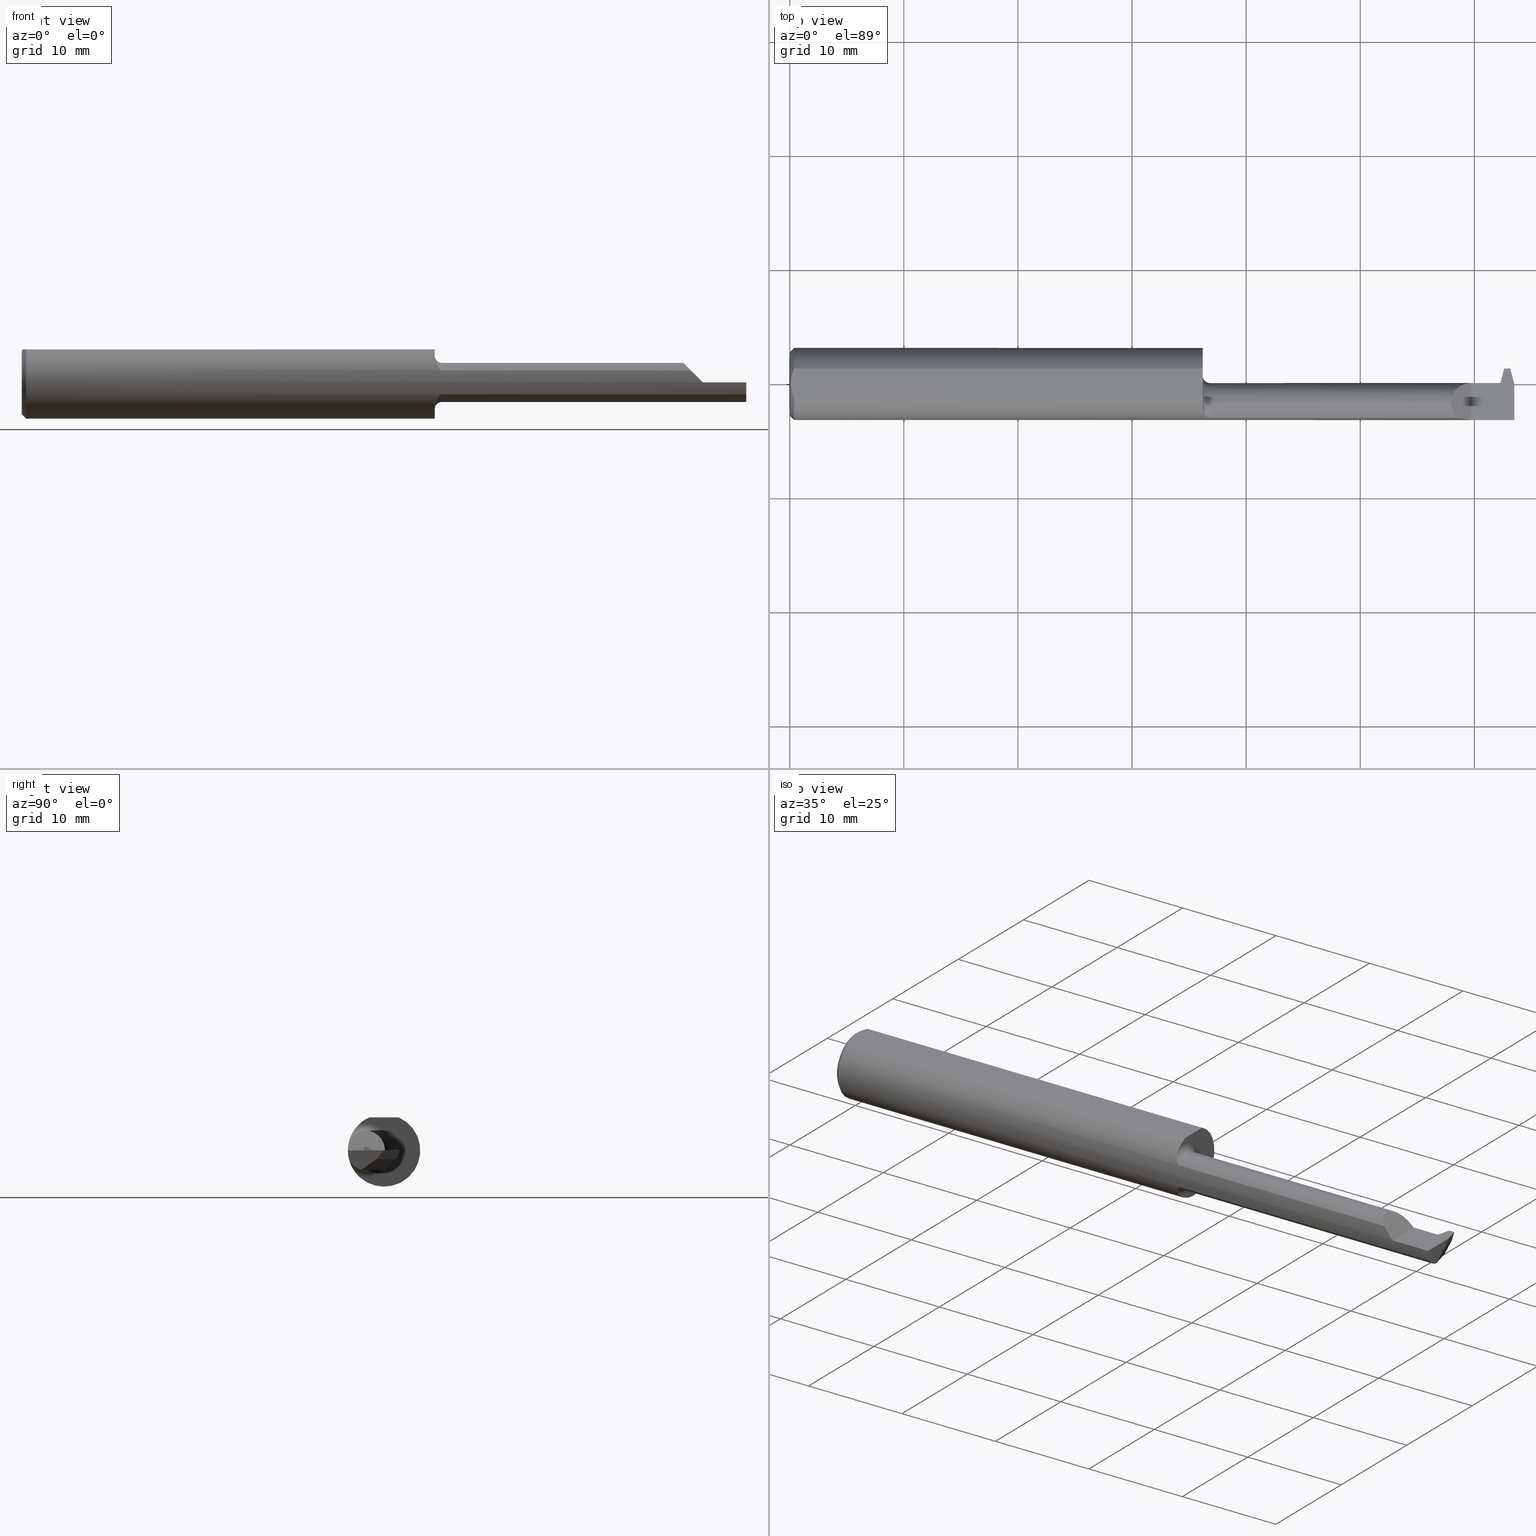
[diagram: canonical four-view strip — front | top / right | iso, engineering-drawing reading convention]
A machine part, canonical four-view strip (front | top / right | iso — engineering-drawing reading convention). The complete STEP part file that produces these views, byte-faithful:
ISO-10303-21;
HEADER;
FILE_DESCRIPTION (( 'STEP AP203' ),
    '1' );
FILE_NAME ('230901-FAT1801000-16.STEP',
    '2024-04-30T20:57:51',
    ( '' ),
    ( '' ),
    'SwSTEP 2.0',
    'SolidWorks 2022',
    '' );
FILE_SCHEMA (( 'CONFIG_CONTROL_DESIGN' ));
ENDSEC;

DATA;
#1 = AXIS2_PLACEMENT_3D ( 'NONE', #503, #405, #24 ) ;
#2 = CARTESIAN_POINT ( 'NONE',  ( 0.01499999999999970281, 0.000000000000000000, 0.000000000000000000 ) ) ;
#3 = ADVANCED_FACE ( 'NONE', ( #935 ), #357, .T. ) ;
#4 = DIRECTION ( 'NONE',  ( -0.2503800040544244543, -0.9681476403781120732, 9.645347760985857856E-17 ) ) ;
#5 = EDGE_LOOP ( 'NONE', ( #774, #593, #108, #548, #39 ) ) ;
#6 = LINE ( 'NONE', #309, #814 ) ;
#7 = ORIENTED_EDGE ( 'NONE', *, *, #58, .T. ) ;
#8 = EDGE_CURVE ( 'NONE', #718, #777, #657, .T. ) ;
#9 = CARTESIAN_POINT ( 'NONE',  ( 2.486000000000000654, 0.05314999999999991953, 0.000000000000000000 ) ) ;
#10 = ORIENTED_EDGE ( 'NONE', *, *, #900, .F. ) ;
#11 = LINE ( 'NONE', #829, #495 ) ;
#12 = EDGE_CURVE ( 'NONE', #111, #259, #479, .T. ) ;
#13 = DIRECTION ( 'NONE',  ( -0.1200238624775787494, 0.3232146245633323312, 0.9386834284807350492 ) ) ;
#14 = VERTEX_POINT ( 'NONE', #329 ) ;
#15 = CARTESIAN_POINT ( 'NONE',  ( 0.003999999999982594735, -1.276290005483319770E-15, 0.1138500000000000068 ) ) ;
#16 = CIRCLE ( 'NONE', #580, 0.06750000000000001832 ) ;
#17 = ORIENTED_EDGE ( 'NONE', *, *, #101, .T. ) ;
#18 = CARTESIAN_POINT ( 'NONE',  ( 2.308991305842072794, -0.1178880730380730268, 0.04110869415792675619 ) ) ;
#19 = ORIENTED_EDGE ( 'NONE', *, *, #679, .F. ) ;
#20 = CARTESIAN_POINT ( 'NONE',  ( 1.450000000000000178, -0.06435000000000003217, 0.000000000000000000 ) ) ;
#21 = EDGE_CURVE ( 'NONE', #362, #149, #633, .T. ) ;
#22 = ORIENTED_EDGE ( 'NONE', *, *, #748, .F. ) ;
#23 = LINE ( 'NONE', #328, #576 ) ;
#24 = DIRECTION ( 'NONE',  ( 0.000000000000000000, 0.000000000000000000, -1.000000000000000000 ) ) ;
#25 = DIRECTION ( 'NONE',  ( -0.000000000000000000, 1.000000000000000000, -1.008033037487503485E-16 ) ) ;
#26 = ORIENTED_EDGE ( 'NONE', *, *, #429, .F. ) ;
#27 = CARTESIAN_POINT ( 'NONE',  ( 2.465114956251801104, 0.07642515056459078804, 0.003604978963281226922 ) ) ;
#28 = CARTESIAN_POINT ( 'NONE',  ( 2.236250000000000071, 0.1000000000000000056, 0.1138500000000000068 ) ) ;
#29 = DIRECTION ( 'NONE',  ( 6.557334767063997888E-16, -0.9455185755993166241, 0.3255681544571572550 ) ) ;
#30 = VECTOR ( 'NONE', #849, 39.37007874015748143 ) ;
#31 = CIRCLE ( 'NONE', #591, 0.06750000000000001832 ) ;
#32 = DIRECTION ( 'NONE',  ( -0.9116190025285898502, 0.2357607042868530567, -0.3367011798953876145 ) ) ;
#33 = ORIENTED_EDGE ( 'NONE', *, *, #709, .F. ) ;
#34 = AXIS2_PLACEMENT_3D ( 'NONE', #537, #73, #765 ) ;
#35 = DIRECTION ( 'NONE',  ( 0.000000000000000000, 0.000000000000000000, -1.000000000000000000 ) ) ;
#36 = CARTESIAN_POINT ( 'NONE',  ( 0.000000000000000000, 0.000000000000000000, 0.000000000000000000 ) ) ;
#37 = ORIENTED_EDGE ( 'NONE', *, *, #56, .T. ) ;
#38 = LINE ( 'NONE', #264, #605 ) ;
#39 = ORIENTED_EDGE ( 'NONE', *, *, #251, .F. ) ;
#40 = CARTESIAN_POINT ( 'NONE',  ( 2.350000000000000089, 0.003149925925885245243, 9.999999999961100661E-05 ) ) ;
#41 = APPROVAL_DATE_TIME ( #419, #743 ) ;
#42 = ORIENTED_EDGE ( 'NONE', *, *, #129, .T. ) ;
#43 = FACE_OUTER_BOUND ( 'NONE', #747, .T. ) ;
#44 = VERTEX_POINT ( 'NONE', #256 ) ;
#45 = CYLINDRICAL_SURFACE ( 'NONE', #881, 0.06750000000000001832 ) ;
#46 = ADVANCED_FACE ( 'NONE', ( #484 ), #105, .F. ) ;
#47 = DIRECTION ( 'NONE',  ( 0.000000000000000000, 0.000000000000000000, -1.000000000000000000 ) ) ;
#48 = CARTESIAN_POINT ( 'NONE',  ( 2.500000000000000000, -0.05670567100518226350, -0.06750000000000001832 ) ) ;
#49 = LOCAL_TIME ( 13, 57, 51.00000000000000000, #209 ) ;
#50 = AXIS2_PLACEMENT_3D ( 'NONE', #491, #722, #35 ) ;
#51 = VECTOR ( 'NONE', #186, 39.37007874015748143 ) ;
#52 = CALENDAR_DATE ( 2024, 30, 4 ) ;
#53 = CARTESIAN_POINT ( 'NONE',  ( 0.000000000000000000, 0.000000000000000000, -0.1098499999999999199 ) ) ;
#54 = LINE ( 'NONE', #984, #538 ) ;
#55 = EDGE_CURVE ( 'NONE', #850, #758, #760, .T. ) ;
#56 = EDGE_CURVE ( 'NONE', #777, #424, #960, .T. ) ;
#57 = PERSON_AND_ORGANIZATION_ROLE ( 'design_supplier' ) ;
#58 = EDGE_CURVE ( 'NONE', #14, #962, #317, .T. ) ;
#59 = CARTESIAN_POINT ( 'NONE',  ( 1.425000000000000266, -0.06435000000000003217, 0.06750000000000001832 ) ) ;
#60 = LINE ( 'NONE', #669, #336 ) ;
#61 = EDGE_LOOP ( 'NONE', ( #19, #696, #64, #630 ) ) ;
#62 = B_SPLINE_CURVE_WITH_KNOTS ( 'NONE', 3,
 ( #570, #144, #218, #440, #260, #674, #520, #565, #751, #443, #793, #940 ),
 .UNSPECIFIED., .F., .F.,
 ( 4, 2, 2, 2, 2, 4 ),
 ( 0.000000000000000000, 0.0002139781332481023612, 0.0004279562664962047224, 0.0008559125329924097700, 0.001283868799488614709, 0.001711825065984819974 ),
 .UNSPECIFIED. ) ;
#63 = CARTESIAN_POINT ( 'NONE',  ( 2.450000000000000178, 0.003149999999999988747, 0.000000000000000000 ) ) ;
#64 = ORIENTED_EDGE ( 'NONE', *, *, #343, .F. ) ;
#65 = CARTESIAN_POINT ( 'NONE',  ( 2.310505889776659494, 0.003091416068753647349, 0.03959411022334007740 ) ) ;
#66 = VECTOR ( 'NONE', #607, 39.37007874015748143 ) ;
#67 = CIRCLE ( 'NONE', #50, 0.02500000000000000486 ) ;
#68 = CARTESIAN_POINT ( 'NONE',  ( 2.446947195464070024, -0.004283243744551786490, -0.03079342126085652526 ) ) ;
#69 = LINE ( 'NONE', #840, #276 ) ;
#70 = DATE_AND_TIME ( #831, #431 ) ;
#71 = CARTESIAN_POINT ( 'NONE',  ( 2.442069120782206060, 0.003149999999999970966, 0.000000000000000000 ) ) ;
#72 = ORIENTED_EDGE ( 'NONE', *, *, #679, .T. ) ;
#73 = DIRECTION ( 'NONE',  ( -1.000000000000000000, -0.000000000000000000, -0.000000000000000000 ) ) ;
#74 = CARTESIAN_POINT ( 'NONE',  ( 1.450000000000000178, -0.06435000000000003217, 0.09250000000000002665 ) ) ;
#75 = ADVANCED_FACE ( 'NONE', ( #282 ), #435, .T. ) ;
#76 = DIRECTION ( 'NONE',  ( 1.000000000000000000, 0.000000000000000000, 0.000000000000000000 ) ) ;
#77 = CARTESIAN_POINT ( 'NONE',  ( 0.01499999999999970281, 0.05124158467494929065, 0.1138500000000000068 ) ) ;
#78 = CARTESIAN_POINT ( 'NONE',  ( 1.716419294199207135, 3.003735556698906350, -0.02999999999988876842 ) ) ;
#79 = ORIENTED_EDGE ( 'NONE', *, *, #937, .F. ) ;
#80 = APPLICATION_CONTEXT ( 'configuration controlled 3d designs of mechanical parts and assemblies' ) ;
#81 = CARTESIAN_POINT ( 'NONE',  ( 2.450000000000000178, 0.01517271303695656541, -0.01717021365936204427 ) ) ;
#82 = EDGE_CURVE ( 'NONE', #962, #464, #560, .T. ) ;
#83 = CARTESIAN_POINT ( 'NONE',  ( 0.003999999999999733803, 0.008800694614867364887, 0.1138500000000000068 ) ) ;
#84 = ORIENTED_EDGE ( 'NONE', *, *, #977, .F. ) ;
#85 = DIRECTION ( 'NONE',  ( 0.000000000000000000, 0.000000000000000000, -1.000000000000000000 ) ) ;
#86 = ORIENTED_EDGE ( 'NONE', *, *, #635, .T. ) ;
#87 = LINE ( 'NONE', #622, #811 ) ;
#88 = VERTEX_POINT ( 'NONE', #590 ) ;
#89 = DIRECTION ( 'NONE',  ( 0.000000000000000000, 0.000000000000000000, -1.000000000000000000 ) ) ;
#90 = EDGE_LOOP ( 'NONE', ( #470, #817, #844, #626, #351, #859, #955, #202 ) ) ;
#91 = EDGE_CURVE ( 'NONE', #957, #149, #819, .T. ) ;
#92 = CARTESIAN_POINT ( 'NONE',  ( 1.428579630862570449, -0.1044777942651883146, -0.06855471305740289123 ) ) ;
#93 = VECTOR ( 'NONE', #659, 39.37007874015748143 ) ;
#94 = EDGE_LOOP ( 'NONE', ( #608, #910, #402, #486 ) ) ;
#95 = VECTOR ( 'NONE', #524, 39.37007874015748143 ) ;
#96 = CARTESIAN_POINT ( 'NONE',  ( 2.442069120782206060, 0.003149999999999970966, 0.000000000000000000 ) ) ;
#97 = EDGE_CURVE ( 'NONE', #842, #14, #16, .T. ) ;
#98 = EDGE_LOOP ( 'NONE', ( #494, #7, #616, #118 ) ) ;
#99 = DIRECTION ( 'NONE',  ( 0.000000000000000000, -1.000000000000000000, 0.000000000000000000 ) ) ;
#100 = EDGE_LOOP ( 'NONE', ( #421, #728, #750, #272 ) ) ;
#101 = EDGE_CURVE ( 'NONE', #792, #14, #134, .T. ) ;
#102 = CARTESIAN_POINT ( 'NONE',  ( 0.005080301127456087092, -0.01778481300359936387, 0.1138500000000000206 ) ) ;
#103 = ORIENTED_EDGE ( 'NONE', *, *, #97, .T. ) ;
#104 = FACE_OUTER_BOUND ( 'NONE', #179, .T. ) ;
#105 = PLANE ( 'NONE',  #755 ) ;
#106 = CARTESIAN_POINT ( 'NONE',  ( 2.456947195464070255, 3.128308802917997955, 2.162671143948034391 ) ) ;
#107 = EDGE_CURVE ( 'NONE', #726, #175, #430, .T. ) ;
#108 = ORIENTED_EDGE ( 'NONE', *, *, #822, .F. ) ;
#109 = DIRECTION ( 'NONE',  ( 0.000000000000000000, 0.000000000000000000, -1.000000000000000000 ) ) ;
#110 = FACE_OUTER_BOUND ( 'NONE', #90, .T. ) ;
#111 = VERTEX_POINT ( 'NONE', #53 ) ;
#112 = PRODUCT_DEFINITION_FORMATION_WITH_SPECIFIED_SOURCE ( 'ANY', '', #979, .NOT_KNOWN. ) ;
#113 = VECTOR ( 'NONE', #452, 39.37007874015748143 ) ;
#114 = DIRECTION ( 'NONE',  ( 1.000000000000000000, 0.000000000000000000, 0.000000000000000000 ) ) ;
#115 = AXIS2_PLACEMENT_3D ( 'NONE', #826, #965, #745 ) ;
#116 = CARTESIAN_POINT ( 'NONE',  ( 2.456947195464070255, -0.05670567100518226350, -0.06750000000000030975 ) ) ;
#117 = PERSON_AND_ORGANIZATION ( #975, #877 ) ;
#118 = ORIENTED_EDGE ( 'NONE', *, *, #152, .F. ) ;
#119 = EDGE_CURVE ( 'NONE', #584, #718, #526, .T. ) ;
#120 = DIRECTION ( 'NONE',  ( 0.07805664651022675704, 0.7049493456751221299, 0.7049493456751304565 ) ) ;
#121 = EDGE_LOOP ( 'NONE', ( #321, #389 ) ) ;
#122 = DIRECTION ( 'NONE',  ( 0.000000000000000000, 0.000000000000000000, 1.000000000000000000 ) ) ;
#123 = APPROVAL_ROLE ( '' ) ;
#124 = ORIENTED_EDGE ( 'NONE', *, *, #343, .T. ) ;
#125 = DIRECTION ( 'NONE',  ( -1.000000000000000000, -0.000000000000000000, -0.000000000000000000 ) ) ;
#126 = ORIENTED_EDGE ( 'NONE', *, *, #900, .T. ) ;
#127 =( NAMED_UNIT ( * ) SI_UNIT ( $, .STERADIAN. ) SOLID_ANGLE_UNIT ( ) );
#128 = CARTESIAN_POINT ( 'NONE',  ( 2.436366871395940326, -0.002552249386265832611, -0.02715304806246835595 ) ) ;
#129 = EDGE_CURVE ( 'NONE', #777, #424, #227, .T. ) ;
#130 = APPROVAL_PERSON_ORGANIZATION ( #156, #426, #456 ) ;
#131 = AXIS2_PLACEMENT_3D ( 'NONE', #756, #919, #85 ) ;
#132 = VECTOR ( 'NONE', #207, 39.37007874015748143 ) ;
#133 = PERSON_AND_ORGANIZATION_ROLE ( 'creator' ) ;
#134 = LINE ( 'NONE', #59, #147 ) ;
#135 = DIRECTION ( 'NONE',  ( -1.000000000000000000, -0.000000000000000000, -0.000000000000000000 ) ) ;
#136 = APPLICATION_PROTOCOL_DEFINITION ( 'international standard', 'config_control_design', 1994, #505 ) ;
#137 = CARTESIAN_POINT ( 'NONE',  ( 2.399999999999999911, 0.07282017160130960232, 0.000000000000000000 ) ) ;
#138 = ORIENTED_EDGE ( 'NONE', *, *, #453, .F. ) ;
#139 = DIRECTION ( 'NONE',  ( 0.2503800040544350014, -0.9681476403781094087, 0.000000000000000000 ) ) ;
#140 = EDGE_CURVE ( 'NONE', #259, #502, #451, .T. ) ;
#141 =( BOUNDED_CURVE ( )  B_SPLINE_CURVE ( 3, ( #404, #639, #771, #18 ),
 .UNSPECIFIED., .F., .T. ) 
 B_SPLINE_CURVE_WITH_KNOTS ( ( 4, 4 ),
 ( 0.000000000000000000, 0.9159748057925681808 ),
 .UNSPECIFIED. ) 
 CURVE ( )  GEOMETRIC_REPRESENTATION_ITEM ( )  RATIONAL_B_SPLINE_CURVE ( ( 1.000000000000000000, 0.9312961138972046804, 0.9312961138972046804, 1.000000000000000000 ) ) 
 REPRESENTATION_ITEM ( '' )  );
#142 = SHAPE_DEFINITION_REPRESENTATION ( #825, #841 ) ;
#143 = CARTESIAN_POINT ( 'NONE',  ( 2.282599999999999962, -0.06435000000000003217, 0.06750000000000001832 ) ) ;
#144 = CARTESIAN_POINT ( 'NONE',  ( 1.447138575833329499, -0.1178880730380729991, 0.04110869415792683251 ) ) ;
#145 = EDGE_CURVE ( 'NONE', #770, #792, #958, .T. ) ;
#146 = CIRCLE ( 'NONE', #433, 0.06750000000000001832 ) ;
#147 = VECTOR ( 'NONE', #364, 39.37007874015748143 ) ;
#148 = CARTESIAN_POINT ( 'NONE',  ( 0.005030588787081553478, 0.01748826716933455164, 0.1138499999999999790 ) ) ;
#149 = VERTEX_POINT ( 'NONE', #498 ) ;
#150 = CC_DESIGN_PERSON_AND_ORGANIZATION_ASSIGNMENT ( #667, #964, ( #856 ) ) ;
#151 = FACE_OUTER_BOUND ( 'NONE', #285, .T. ) ;
#152 = EDGE_CURVE ( 'NONE', #268, #44, #62, .T. ) ;
#153 = LINE ( 'NONE', #219, #113 ) ;
#154 = DIRECTION ( 'NONE',  ( 0.000000000000000000, 0.000000000000000000, -1.000000000000000000 ) ) ;
#155 = DIRECTION ( 'NONE',  ( 1.000000000000000000, 0.000000000000000000, 0.000000000000000000 ) ) ;
#156 = PERSON_AND_ORGANIZATION ( #975, #877 ) ;
#157 = CARTESIAN_POINT ( 'NONE',  ( 1.425000000000000266, -0.08680804195804191215, -0.08973230383429835200 ) ) ;
#158 = ORIENTED_EDGE ( 'NONE', *, *, #714, .T. ) ;
#159 = EDGE_CURVE ( 'NONE', #737, #214, #146, .T. ) ;
#160 = CARTESIAN_POINT ( 'NONE',  ( 2.350000000000000089, 0.003149999999999971833, -3.367667473011536351E-17 ) ) ;
#161 = LOCAL_TIME ( 13, 57, 51.00000000000000000, #271 ) ;
#162 = AXIS2_PLACEMENT_3D ( 'NONE', #63, #369, #673 ) ;
#163 = VECTOR ( 'NONE', #712, 39.37007874015748143 ) ;
#164 = CARTESIAN_POINT ( 'NONE',  ( 0.01499999999999970281, 0.05124158467494929065, 0.1138500000000000068 ) ) ;
#165 = VECTOR ( 'NONE', #824, 39.37007874015748143 ) ;
#166 = ORIENTED_EDGE ( 'NONE', *, *, #963, .F. ) ;
#167 = CARTESIAN_POINT ( 'NONE',  ( 0.000000000000000000, 1.437123018799418518E-17, 0.1098499999999999199 ) ) ;
#168 = ADVANCED_FACE ( 'NONE', ( #333 ), #818, .T. ) ;
#169 = ORIENTED_EDGE ( 'NONE', *, *, #381, .T. ) ;
#170 = CARTESIAN_POINT ( 'NONE',  ( 1.438805720551186385, -0.1151363458569193837, -0.04834088676794719153 ) ) ;
#171 = EDGE_LOOP ( 'NONE', ( #387, #651, #665, #553 ) ) ;
#172 = CARTESIAN_POINT ( 'NONE',  ( 2.446947195464070024, 3.128308802917997955, 2.162671143948034391 ) ) ;
#173 = ORIENTED_EDGE ( 'NONE', *, *, #236, .F. ) ;
#174 = CARTESIAN_POINT ( 'NONE',  ( 2.350000000000000089, 0.1499999999999999944, -3.367667473011537583E-17 ) ) ;
#175 = VERTEX_POINT ( 'NONE', #116 ) ;
#176 = CARTESIAN_POINT ( 'NONE',  ( 2.452069120782205847, 0.003149999999999971833, 0.000000000000000000 ) ) ;
#177 = ORIENTED_EDGE ( 'NONE', *, *, #101, .F. ) ;
#178 = CARTESIAN_POINT ( 'NONE',  ( 2.500000000000000000, 3.105312704339159513, 2.162671143948034391 ) ) ;
#179 = EDGE_LOOP ( 'NONE', ( #472, #238, #420, #33 ) ) ;
#180 = AXIS2_PLACEMENT_3D ( 'NONE', #569, #269, #710 ) ;
#181 = DIRECTION ( 'NONE',  ( 0.000000000000000000, 0.000000000000000000, 1.000000000000000000 ) ) ;
#182 = EDGE_LOOP ( 'NONE', ( #391, #670, #86, #262, #366, #277 ) ) ;
#183 = EDGE_CURVE ( 'NONE', #758, #88, #220, .T. ) ;
#184 = B_SPLINE_CURVE_WITH_KNOTS ( 'NONE', 3,
 ( #242, #559, #615, #254, #92, #921, #788, #170, #337, #542, #701, #843 ),
 .UNSPECIFIED., .F., .F.,
 ( 4, 2, 2, 2, 2, 4 ),
 ( 0.000000000000000000, 0.0004231261345662541500, 0.0008462522691325083000, 0.001269378403698762396, 0.001480941470981889715, 0.001692504538265017251 ),
 .UNSPECIFIED. ) ;
#185 = CARTESIAN_POINT ( 'NONE',  ( 2.350000000000000089, -0.1248499599519359016, 9.999999999961100661E-05 ) ) ;
#186 = DIRECTION ( 'NONE',  ( 1.000000000000000000, 0.000000000000000000, 0.000000000000000000 ) ) ;
#187 = DIRECTION ( 'NONE',  ( -0.000000000000000000, 1.000000000000000000, -0.000000000000000000 ) ) ;
#188 = DIRECTION ( 'NONE',  ( -0.9474803064293677579, -0.2450350680735350895, 0.2055210070593989913 ) ) ;
#189 = LINE ( 'NONE', #867, #672 ) ;
#190 = ORIENTED_EDGE ( 'NONE', *, *, #676, .F. ) ;
#191 = CARTESIAN_POINT ( 'NONE',  ( 0.003999999999982594735, -1.276290005483319770E-15, 0.1138500000000000068 ) ) ;
#192 = ADVANCED_FACE ( 'NONE', ( #296 ), #45, .T. ) ;
#193 = DIRECTION ( 'NONE',  ( 0.000000000000000000, 0.000000000000000000, 1.000000000000000000 ) ) ;
#194 = ADVANCED_FACE ( 'NONE', ( #821 ), #422, .T. ) ;
#195 =( LENGTH_UNIT ( ) NAMED_UNIT ( * ) SI_UNIT ( $, .METRE. ) );
#196 = VERTEX_POINT ( 'NONE', #649 ) ;
#197 = DIRECTION ( 'NONE',  ( 0.000000000000000000, 0.000000000000000000, -1.000000000000000000 ) ) ;
#198 = AXIS2_PLACEMENT_3D ( 'NONE', #2, #455, #154 ) ;
#199 = LINE ( 'NONE', #798, #621 ) ;
#200 = DATE_AND_TIME ( #886, #161 ) ;
#201 = DESIGN_CONTEXT ( 'detailed design', #80, 'design' ) ;
#202 = ORIENTED_EDGE ( 'NONE', *, *, #733, .F. ) ;
#203 = CARTESIAN_POINT ( 'NONE',  ( 2.452069120782205847, -0.003150120752352145604, -0.02999999999999952358 ) ) ;
#204 = ORIENTED_EDGE ( 'NONE', *, *, #519, .F. ) ;
#205 = ADVANCED_FACE ( 'NONE', ( #594 ), #872, .F. ) ;
#206 = CALENDAR_DATE ( 2024, 30, 4 ) ;
#207 = DIRECTION ( 'NONE',  ( -1.000000000000000000, -0.000000000000000000, -0.000000000000000000 ) ) ;
#208 = CARTESIAN_POINT ( 'NONE',  ( 2.350000000000000089, -0.1248499999999999888, -3.367667473011536351E-17 ) ) ;
#209 = COORDINATED_UNIVERSAL_TIME_OFFSET ( 8, 0, .BEHIND. ) ;
#210 = DIRECTION ( 'NONE',  ( -1.000000000000000000, -1.057719221318246822E-15, -1.057719221318259050E-15 ) ) ;
#211 = EDGE_CURVE ( 'NONE', #804, #308, #985, .T. ) ;
#212 = FACE_OUTER_BOUND ( 'NONE', #885, .T. ) ;
#213 = TOROIDAL_SURFACE ( 'NONE', #352, 0.09250000000000002665, 0.02500000000000000139 ) ;
#214 = VERTEX_POINT ( 'NONE', #290 ) ;
#215 = VECTOR ( 'NONE', #326, 39.37007874015748143 ) ;
#216 = DIRECTION ( 'NONE',  ( 0.000000000000000000, -0.8191520442889929088, -0.5735764363510444941 ) ) ;
#217 = DIRECTION ( 'NONE',  ( 0.000000000000000000, 0.000000000000000000, -1.000000000000000000 ) ) ;
#218 = CARTESIAN_POINT ( 'NONE',  ( 1.444575795023728348, -0.1173638605453972278, 0.04262586039006312916 ) ) ;
#219 = CARTESIAN_POINT ( 'NONE',  ( 2.452069120782205847, 0.003149999999999971833, 0.000000000000000000 ) ) ;
#220 = LINE ( 'NONE', #27, #416 ) ;
#221 = EDGE_CURVE ( 'NONE', #842, #464, #67, .T. ) ;
#222 = EDGE_CURVE ( 'NONE', #474, #327, #731, .T. ) ;
#223 = DIRECTION ( 'NONE',  ( 0.000000000000000000, 0.000000000000000000, -1.000000000000000000 ) ) ;
#224 = EDGE_LOOP ( 'NONE', ( #138, #454, #448, #932 ) ) ;
#225 = DIRECTION ( 'NONE',  ( -0.000000000000000000, 0.000000000000000000, -1.000000000000000000 ) ) ;
#226 = APPROVAL_PERSON_ORGANIZATION ( #117, #743, #738 ) ;
#227 = CIRCLE ( 'NONE', #115, 0.06750000000000001832 ) ;
#228 = CLOSED_SHELL ( 'NONE', ( #596, #574, #3, #75, #446, #295, #168, #577, #192, #624, #205, #775, #331, #661, #194, #481, #361, #876, #948, #666, #325, #303, #476, #46, #847, #531, #905, #281, #511 ) ) ;
#229 = CARTESIAN_POINT ( 'NONE',  ( 2.350000000000000089, -0.1248499599519359016, 9.999999999961100661E-05 ) ) ;
#230 = DIRECTION ( 'NONE',  ( 1.000000000000000000, 0.000000000000000000, 0.000000000000000000 ) ) ;
#231 = CARTESIAN_POINT ( 'NONE',  ( 1.425000000000000266, -0.06435000000000003217, 0.000000000000000000 ) ) ;
#232 = APPROVAL_STATUS ( 'not_yet_approved' ) ;
#233 = DIRECTION ( 'NONE',  ( -0.000000000000000000, 1.000000000000000000, -0.000000000000000000 ) ) ;
#234 = ORIENTED_EDGE ( 'NONE', *, *, #723, .F. ) ;
#235 = CARTESIAN_POINT ( 'NONE',  ( 2.500000000000000000, -0.1248499999999999471, -3.367667473011537583E-17 ) ) ;
#236 = EDGE_CURVE ( 'NONE', #730, #318, #945, .T. ) ;
#237 = CARTESIAN_POINT ( 'NONE',  ( 0.01167190377471843954, 0.04313268608482607319, 0.1138500000000000068 ) ) ;
#238 = ORIENTED_EDGE ( 'NONE', *, *, #145, .T. ) ;
#239 = CARTESIAN_POINT ( 'NONE',  ( 2.452069120782205847, 0.003149999999999971833, 0.000000000000000000 ) ) ;
#240 = EDGE_LOOP ( 'NONE', ( #250, #855, #694, #551, #375, #126 ) ) ;
#241 = VECTOR ( 'NONE', #76, 39.37007874015748143 ) ;
#242 = CARTESIAN_POINT ( 'NONE',  ( 1.425000000000000266, -0.08680804195804191215, -0.08973230383429835200 ) ) ;
#243 = ORIENTED_EDGE ( 'NONE', *, *, #265, .F. ) ;
#244 = EDGE_CURVE ( 'NONE', #770, #871, #199, .T. ) ;
#245 = LINE ( 'NONE', #604, #860 ) ;
#246 = ORIENTED_EDGE ( 'NONE', *, *, #429, .T. ) ;
#247 = LINE ( 'NONE', #547, #30 ) ;
#248 = ORIENTED_EDGE ( 'NONE', *, *, #927, .T. ) ;
#249 = CARTESIAN_POINT ( 'NONE',  ( 2.475499999999999812, 3.200047175164180135, 2.162671143948034391 ) ) ;
#250 = ORIENTED_EDGE ( 'NONE', *, *, #610, .T. ) ;
#251 = EDGE_CURVE ( 'NONE', #111, #804, #11, .T. ) ;
#252 = VERTEX_POINT ( 'NONE', #235 ) ;
#253 = DIRECTION ( 'NONE',  ( 0.2503800040544436611, 0.9681476403781070772, -5.571124129471639010E-14 ) ) ;
#254 = CARTESIAN_POINT ( 'NONE',  ( 1.427244443432142962, -0.1013644936721858902, -0.07309500289283984986 ) ) ;
#255 = CIRCLE ( 'NONE', #383, 0.1248500000000000026 ) ;
#256 = CARTESIAN_POINT ( 'NONE',  ( 1.425000000000000266, -0.08680804195804191215, 0.08973230383429835200 ) ) ;
#257 = CIRCLE ( 'NONE', #399, 0.1248500000000000026 ) ;
#258 = FACE_OUTER_BOUND ( 'NONE', #284, .T. ) ;
#259 = VERTEX_POINT ( 'NONE', #167 ) ;
#260 = CARTESIAN_POINT ( 'NONE',  ( 1.438797751365139321, -0.1151316249329346203, 0.04835186460175136536 ) ) ;
#261 = CARTESIAN_POINT ( 'NONE',  ( 1.425000000000000266, -0.06435000000000003217, 0.09250000000000002665 ) ) ;
#262 = ORIENTED_EDGE ( 'NONE', *, *, #159, .F. ) ;
#263 = EDGE_CURVE ( 'NONE', #324, #543, #845, .T. ) ;
#264 = CARTESIAN_POINT ( 'NONE',  ( 2.471668405726069828, 0.05377257574048088101, -0.03000000000000212566 ) ) ;
#265 = EDGE_CURVE ( 'NONE', #252, #700, #69, .T. ) ;
#266 = EDGE_LOOP ( 'NONE', ( #408, #17, #612, #806 ) ) ;
#267 = DIRECTION ( 'NONE',  ( -1.000000000000000000, -6.935172863111265358E-16, 0.000000000000000000 ) ) ;
#268 = VERTEX_POINT ( 'NONE', #911 ) ;
#269 = DIRECTION ( 'NONE',  ( -1.000000000000000000, -0.000000000000000000, -0.000000000000000000 ) ) ;
#270 = CARTESIAN_POINT ( 'NONE',  ( 0.01499999999999970281, 1.528971528735470422E-17, 0.1248500000000000026 ) ) ;
#271 = COORDINATED_UNIVERSAL_TIME_OFFSET ( 8, 0, .BEHIND. ) ;
#272 = ORIENTED_EDGE ( 'NONE', *, *, #55, .F. ) ;
#273 = AXIS2_PLACEMENT_3D ( 'NONE', #805, #125, #425 ) ;
#274 = DIRECTION ( 'NONE',  ( 0.000000000000000000, 0.000000000000000000, -1.000000000000000000 ) ) ;
#275 = CIRCLE ( 'NONE', #354, 0.1098499999999999199 ) ;
#276 = VECTOR ( 'NONE', #677, 39.37007874015748143 ) ;
#277 = ORIENTED_EDGE ( 'NONE', *, *, #554, .T. ) ;
#278 = EDGE_LOOP ( 'NONE', ( #190, #546, #768, #781, #564, #234 ) ) ;
#279 = DIRECTION ( 'NONE',  ( 0.000000000000000000, 0.000000000000000000, 1.000000000000000000 ) ) ;
#280 = ORIENTED_EDGE ( 'NONE', *, *, #129, .F. ) ;
#281 = ADVANCED_FACE ( 'NONE', ( #151 ), #762, .T. ) ;
#282 = FACE_OUTER_BOUND ( 'NONE', #653, .T. ) ;
#283 = PLANE ( 'NONE',  #162 ) ;
#284 = EDGE_LOOP ( 'NONE', ( #10, #84, #926, #246, #660 ) ) ;
#285 = EDGE_LOOP ( 'NONE', ( #37, #280 ) ) ;
#286 =( NAMED_UNIT ( * ) PLANE_ANGLE_UNIT ( ) SI_UNIT ( $, .RADIAN. ) );
#287 = CARTESIAN_POINT ( 'NONE',  ( 2.446947195464070024, 3.128308802917997955, 2.162671143948034391 ) ) ;
#288 = CARTESIAN_POINT ( 'NONE',  ( 2.497196856898272532, -0.06886281944569799807, -0.06750000000000000444 ) ) ;
#289 = ORIENTED_EDGE ( 'NONE', *, *, #355, .F. ) ;
#290 = CARTESIAN_POINT ( 'NONE',  ( 2.500000000000000000, -0.07777569386178065369, -0.06615134726012476818 ) ) ;
#291 = AXIS2_PLACEMENT_3D ( 'NONE', #174, #863, #488 ) ;
#292 = AXIS2_PLACEMENT_3D ( 'NONE', #239, #699, #599 ) ;
#293 = COORDINATED_UNIVERSAL_TIME_OFFSET ( 8, 0, .BEHIND. ) ;
#294 = CARTESIAN_POINT ( 'NONE',  ( 2.450000000000000178, -0.05670567100518227044, -0.06750000000000001832 ) ) ;
#295 = ADVANCED_FACE ( 'NONE', ( #306 ), #300, .T. ) ;
#296 = FACE_OUTER_BOUND ( 'NONE', #182, .T. ) ;
#297 = LINE ( 'NONE', #611, #241 ) ;
#298 = PLANE ( 'NONE',  #292 ) ;
#299 = CARTESIAN_POINT ( 'NONE',  ( 2.450000000000000178, -0.004283243744551730979, -0.03079342126085642811 ) ) ;
#300 = PLANE ( 'NONE',  #131 ) ;
#301 = DIRECTION ( 'NONE',  ( -1.000000000000000000, -0.000000000000000000, -0.000000000000000000 ) ) ;
#302 = AXIS2_PLACEMENT_3D ( 'NONE', #172, #465, #695 ) ;
#303 = ADVANCED_FACE ( 'NONE', ( #925 ), #373, .T. ) ;
#304 = LINE ( 'NONE', #693, #66 ) ;
#305 = ORIENTED_EDGE ( 'NONE', *, *, #519, .T. ) ;
#306 = FACE_OUTER_BOUND ( 'NONE', #864, .T. ) ;
#307 = CARTESIAN_POINT ( 'NONE',  ( 2.498851653931791983, 0.1053268472866106809, -0.06750000000000003220 ) ) ;
#308 = VERTEX_POINT ( 'NONE', #77 ) ;
#309 = CARTESIAN_POINT ( 'NONE',  ( 2.465568958685582679, 0.05535000000000005194, 0.000000000000000000 ) ) ;
#310 = ORIENTED_EDGE ( 'NONE', *, *, #783, .T. ) ;
#311 = DIRECTION ( 'NONE',  ( 0.000000000000000000, 0.000000000000000000, -1.000000000000000000 ) ) ;
#312 = ORIENTED_EDGE ( 'NONE', *, *, #159, .T. ) ;
#313 = LINE ( 'NONE', #682, #356 ) ;
#314 = ORIENTED_EDGE ( 'NONE', *, *, #251, .T. ) ;
#315 = AXIS2_PLACEMENT_3D ( 'NONE', #437, #507, #744 ) ;
#316 = CARTESIAN_POINT ( 'NONE',  ( 2.436366871395940326, -0.002552249386265832611, -0.02715304806246835595 ) ) ;
#317 = CIRCLE ( 'NONE', #882, 0.02500000000000000486 ) ;
#318 = VERTEX_POINT ( 'NONE', #759 ) ;
#319 = EDGE_CURVE ( 'NONE', #536, #602, #245, .T. ) ;
#320 = PLANE ( 'NONE',  #541 ) ;
#321 = ORIENTED_EDGE ( 'NONE', *, *, #12, .T. ) ;
#322 = CC_DESIGN_PERSON_AND_ORGANIZATION_ASSIGNMENT ( #434, #57, ( #112 ) ) ;
#323 = DIRECTION ( 'NONE',  ( -1.000000000000000000, -0.000000000000000000, -0.000000000000000000 ) ) ;
#324 = VERTEX_POINT ( 'NONE', #449 ) ;
#325 = ADVANCED_FACE ( 'NONE', ( #392 ), #688, .T. ) ;
#326 = DIRECTION ( 'NONE',  ( -0.2503800040544401084, 0.9681476403781081874, -9.645347760985759249E-17 ) ) ;
#327 = VERTEX_POINT ( 'NONE', #609 ) ;
#328 = CARTESIAN_POINT ( 'NONE',  ( 2.488472951119633514, -0.01006077264900669468, -0.1835774135135380125 ) ) ;
#329 = CARTESIAN_POINT ( 'NONE',  ( 1.450000000000000178, -0.06435000000000003217, 0.06750000000000001832 ) ) ;
#330 = CARTESIAN_POINT ( 'NONE',  ( 0.008925039223039965899, -0.03485448893270377130, 0.1138499999999999790 ) ) ;
#331 = ADVANCED_FACE ( 'NONE', ( #380 ), #298, .F. ) ;
#332 = ORIENTED_EDGE ( 'NONE', *, *, #221, .T. ) ;
#333 = FACE_OUTER_BOUND ( 'NONE', #415, .T. ) ;
#334 = EDGE_CURVE ( 'NONE', #88, #540, #313, .T. ) ;
#335 = AXIS2_PLACEMENT_3D ( 'NONE', #632, #934, #483 ) ;
#336 = VECTOR ( 'NONE', #120, 39.37007874015748854 ) ;
#337 = CARTESIAN_POINT ( 'NONE',  ( 1.440487603854009313, -0.1159976367288706595, -0.04621409347929126415 ) ) ;
#338 = ORIENTED_EDGE ( 'NONE', *, *, #97, .F. ) ;
#339 = AXIS2_PLACEMENT_3D ( 'NONE', #418, #802, #866 ) ;
#340 = DIRECTION ( 'NONE',  ( -0.3464677099351416434, 0.000000000000000000, 0.9380618987957555222 ) ) ;
#341 = ORIENTED_EDGE ( 'NONE', *, *, #82, .F. ) ;
#342 = CARTESIAN_POINT ( 'NONE',  ( 2.500000000000000000, -0.06435000000000003217, 0.000000000000000000 ) ) ;
#343 = EDGE_CURVE ( 'NONE', #700, #871, #620, .T. ) ;
#344 = ORIENTED_EDGE ( 'NONE', *, *, #406, .T. ) ;
#345 = DIRECTION ( 'NONE',  ( -0.000000000000000000, 0.000000000000000000, 1.000000000000000000 ) ) ;
#346 = PERSON_AND_ORGANIZATION ( #975, #877 ) ;
#347 = ORIENTED_EDGE ( 'NONE', *, *, #140, .F. ) ;
#348 = DIRECTION ( 'NONE',  ( -1.000000000000000000, -0.000000000000000000, -0.000000000000000000 ) ) ;
#349 = ORIENTED_EDGE ( 'NONE', *, *, #221, .F. ) ;
#350 = CARTESIAN_POINT ( 'NONE',  ( 2.500000000000000000, -0.05124158467494929065, 0.1138500000000000068 ) ) ;
#351 = ORIENTED_EDGE ( 'NONE', *, *, #107, .T. ) ;
#352 = AXIS2_PLACEMENT_3D ( 'NONE', #365, #729, #217 ) ;
#353 = DIRECTION ( 'NONE',  ( 0.000000000000000000, -0.7071067811865516806, 0.7071067811865433539 ) ) ;
#354 = AXIS2_PLACEMENT_3D ( 'NONE', #36, #323, #784 ) ;
#355 = EDGE_CURVE ( 'NONE', #787, #556, #257, .T. ) ;
#356 = VECTOR ( 'NONE', #687, 39.37007874015748143 ) ;
#357 = CONICAL_SURFACE ( 'NONE', #515, 0.1248500000000000026, 0.7853981633974608245 ) ;
#358 = APPROVAL_DATE_TIME ( #423, #678 ) ;
#359 = CARTESIAN_POINT ( 'NONE',  ( 1.425000000000000266, -0.06435000000000003217, 0.000000000000000000 ) ) ;
#360 = FACE_OUTER_BOUND ( 'NONE', #98, .T. ) ;
#361 = ADVANCED_FACE ( 'NONE', ( #617 ), #534, .F. ) ;
#362 = VERTEX_POINT ( 'NONE', #160 ) ;
#363 = SECURITY_CLASSIFICATION_LEVEL ( 'unclassified' ) ;
#364 = DIRECTION ( 'NONE',  ( -1.000000000000000000, -0.000000000000000000, -0.000000000000000000 ) ) ;
#365 = CARTESIAN_POINT ( 'NONE',  ( 1.450000000000000178, -0.06435000000000003217, 0.000000000000000000 ) ) ;
#366 = ORIENTED_EDGE ( 'NONE', *, *, #963, .T. ) ;
#367 = MANIFOLD_SOLID_BREP ( 'Cut-Sweep1', #228 ) ;
#368 = DATE_AND_TIME ( #692, #936 ) ;
#369 = DIRECTION ( 'NONE',  ( -1.000000000000000000, 0.000000000000000000, -0.000000000000000000 ) ) ;
#370 = CIRCLE ( 'NONE', #922, 0.1248500000000000026 ) ;
#371 = DIRECTION ( 'NONE',  ( 1.000000000000000000, -0.000000000000000000, -0.000000000000000000 ) ) ;
#372 = CARTESIAN_POINT ( 'NONE',  ( 1.450000000000000178, -0.06435000000000003217, -0.06750000000000001832 ) ) ;
#373 = PLANE ( 'NONE',  #461 ) ;
#374 = DIRECTION ( 'NONE',  ( -0.9786527043120508695, 0.000000000000000000, 0.2055210070593990190 ) ) ;
#375 = ORIENTED_EDGE ( 'NONE', *, *, #355, .T. ) ;
#376 = CARTESIAN_POINT ( 'NONE',  ( 1.425000000000000266, 0.000000000000000000, 0.000000000000000000 ) ) ;
#377 = CARTESIAN_POINT ( 'NONE',  ( 2.440128569999999719, 0.04282017160130988792, -0.03000000000000005440 ) ) ;
#378 = LINE ( 'NONE', #78, #442 ) ;
#379 = AXIS2_PLACEMENT_3D ( 'NONE', #28, #725, #776 ) ;
#380 = FACE_OUTER_BOUND ( 'NONE', #278, .T. ) ;
#381 = EDGE_CURVE ( 'NONE', #489, #718, #460, .T. ) ;
#382 = APPROVAL_PERSON_ORGANIZATION ( #803, #678, #123 ) ;
#383 = AXIS2_PLACEMENT_3D ( 'NONE', #892, #595, #197 ) ;
#384 = AXIS2_PLACEMENT_3D ( 'NONE', #396, #634, #181 ) ;
#385 = CC_DESIGN_PERSON_AND_ORGANIZATION_ASSIGNMENT ( #428, #571, ( #979 ) ) ;
#386 = LINE ( 'NONE', #307, #952 ) ;
#387 = ORIENTED_EDGE ( 'NONE', *, *, #812, .T. ) ;
#388 = CARTESIAN_POINT ( 'NONE',  ( 1.425000000000000266, 0.2031499999999999972, 0.000000000000000000 ) ) ;
#389 = ORIENTED_EDGE ( 'NONE', *, *, #852, .T. ) ;
#390 = DIRECTION ( 'NONE',  ( 1.000000000000000000, 0.000000000000000000, 0.000000000000000000 ) ) ;
#391 = ORIENTED_EDGE ( 'NONE', *, *, #869, .F. ) ;
#392 = FACE_OUTER_BOUND ( 'NONE', #480, .T. ) ;
#393 = ORIENTED_EDGE ( 'NONE', *, *, #937, .T. ) ;
#394 = CARTESIAN_POINT ( 'NONE',  ( 2.482164078575293420, 0.04282017160131251082, -0.02999999999999697700 ) ) ;
#395 = EDGE_LOOP ( 'NONE', ( #158, #681, #248, #173 ) ) ;
#396 = CARTESIAN_POINT ( 'NONE',  ( 1.425000000000000266, -0.06435000000000003217, 0.000000000000000000 ) ) ;
#397 = AXIS2_PLACEMENT_3D ( 'NONE', #966, #749, #274 ) ;
#398 = EDGE_CURVE ( 'NONE', #466, #318, #6, .T. ) ;
#399 = AXIS2_PLACEMENT_3D ( 'NONE', #376, #982, #915 ) ;
#400 = PLANE ( 'NONE',  #291 ) ;
#401 = VECTOR ( 'NONE', #668, 39.37007874015748143 ) ;
#402 = ORIENTED_EDGE ( 'NONE', *, *, #791, .T. ) ;
#403 = DIRECTION ( 'NONE',  ( 0.2013133534504512878, 0.2013133534504512878, 0.9586166425871539554 ) ) ;
#404 = CARTESIAN_POINT ( 'NONE',  ( 2.282599999999999962, -0.06435000000000003217, 0.06750000000000001832 ) ) ;
#405 = DIRECTION ( 'NONE',  ( -1.000000000000000000, -0.000000000000000000, -0.000000000000000000 ) ) ;
#406 = EDGE_CURVE ( 'NONE', #543, #602, #411, .T. ) ;
#407 = PLANE ( 'NONE',  #513 ) ;
#408 = ORIENTED_EDGE ( 'NONE', *, *, #898, .F. ) ;
#409 = PLANE ( 'NONE',  #379 ) ;
#410 = CARTESIAN_POINT ( 'NONE',  ( 2.440128569999999719, -0.01196363089143154951, -0.1891037151198632915 ) ) ;
#411 = LINE ( 'NONE', #715, #477 ) ;
#412 = ORIENTED_EDGE ( 'NONE', *, *, #58, .F. ) ;
#413 = CARTESIAN_POINT ( 'NONE',  ( 2.282599999999999962, -0.02485584643600085783, 0.06749999999999999056 ) ) ;
#414 = LINE ( 'NONE', #178, #539 ) ;
#415 = EDGE_LOOP ( 'NONE', ( #702, #169, #636 ) ) ;
#416 = VECTOR ( 'NONE', #974, 39.37007874015748143 ) ;
#417 = DIRECTION ( 'NONE',  ( 1.000000000000000000, 1.067128122525114190E-16, -0.000000000000000000 ) ) ;
#418 = CARTESIAN_POINT ( 'NONE',  ( 2.500000000000000000, 0.000000000000000000, 0.000000000000000000 ) ) ;
#419 = DATE_AND_TIME ( #52, #778 ) ;
#420 = ORIENTED_EDGE ( 'NONE', *, *, #898, .T. ) ;
#421 = ORIENTED_EDGE ( 'NONE', *, *, #631, .F. ) ;
#422 = CYLINDRICAL_SURFACE ( 'NONE', #339, 0.1248500000000000026 ) ;
#423 = DATE_AND_TIME ( #206, #49 ) ;
#424 = VERTEX_POINT ( 'NONE', #773 ) ;
#425 = DIRECTION ( 'NONE',  ( 0.000000000000000000, 0.000000000000000000, 1.000000000000000000 ) ) ;
#426 = APPROVAL ( #232, 'UNSPECIFIED' ) ;
#427 = ORIENTED_EDGE ( 'NONE', *, *, #862, .T. ) ;
#428 = PERSON_AND_ORGANIZATION ( #975, #877 ) ;
#429 = EDGE_CURVE ( 'NONE', #502, #327, #450, .T. ) ;
#430 = LINE ( 'NONE', #530, #401 ) ;
#431 = LOCAL_TIME ( 13, 57, 51.00000000000000000, #895 ) ;
#432 = DIRECTION ( 'NONE',  ( 0.000000000000000000, 0.000000000000000000, -1.000000000000000000 ) ) ;
#433 = AXIS2_PLACEMENT_3D ( 'NONE', #342, #371, #122 ) ;
#434 = PERSON_AND_ORGANIZATION ( #975, #877 ) ;
#435 = CYLINDRICAL_SURFACE ( 'NONE', #861, 0.06750000000000001832 ) ;
#436 = EDGE_LOOP ( 'NONE', ( #808, #568 ) ) ;
#437 = CARTESIAN_POINT ( 'NONE',  ( 0.000000000000000000, 0.000000000000000000, 0.000000000000000000 ) ) ;
#438 = PLANE ( 'NONE',  #397 ) ;
#439 = ORIENTED_EDGE ( 'NONE', *, *, #8, .T. ) ;
#440 = CARTESIAN_POINT ( 'NONE',  ( 1.440471370292704556, -0.1159916994806585028, 0.04622948612845707850 ) ) ;
#441 = CARTESIAN_POINT ( 'NONE',  ( 2.500000000000000000, -0.02614621933119233924, -0.03000000000000118197 ) ) ;
#442 = VECTOR ( 'NONE', #913, 39.37007874015748143 ) ;
#443 = CARTESIAN_POINT ( 'NONE',  ( 1.425472843869164841, -0.09461185655952933371, 0.08164619401006140142 ) ) ;
#444 = AXIS2_PLACEMENT_3D ( 'NONE', #830, #508, #813 ) ;
#445 = AXIS2_PLACEMENT_3D ( 'NONE', #359, #301, #586 ) ;
#446 = ADVANCED_FACE ( 'NONE', ( #875 ), #719, .T. ) ;
#447 = FACE_OUTER_BOUND ( 'NONE', #436, .T. ) ;
#448 = ORIENTED_EDGE ( 'NONE', *, *, #398, .T. ) ;
#449 = CARTESIAN_POINT ( 'NONE',  ( 2.496029762434592403, -0.06435000000000004605, -0.06750000000000001832 ) ) ;
#450 = B_SPLINE_CURVE_WITH_KNOTS ( 'NONE', 3,
 ( #191, #865, #102, #330, #727, #851 ),
 .UNSPECIFIED., .F., .F.,
 ( 4, 2, 4 ),
 ( 0.002543458196361374386, 0.003213918189955199643, 0.003884378183549024900 ),
 .UNSPECIFIED. ) ;
#451 = LINE ( 'NONE', #270, #740 ) ;
#452 = DIRECTION ( 'NONE',  ( -0.1571540165094713060, 0.2029672248372563215, 0.9664920696709329295 ) ) ;
#453 = EDGE_CURVE ( 'NONE', #726, #758, #38, .T. ) ;
#454 = ORIENTED_EDGE ( 'NONE', *, *, #723, .T. ) ;
#455 = DIRECTION ( 'NONE',  ( 1.000000000000000000, -0.000000000000000000, -0.000000000000000000 ) ) ;
#456 = APPROVAL_ROLE ( '' ) ;
#457 = CARTESIAN_POINT ( 'NONE',  ( 0.01499999999999970281, 0.000000000000000000, -0.1248500000000000026 ) ) ;
#458 = ORIENTED_EDGE ( 'NONE', *, *, #748, .T. ) ;
#459 = EDGE_CURVE ( 'NONE', #44, #962, #939, .T. ) ;
#460 = LINE ( 'NONE', #81, #95 ) ;
#461 = AXIS2_PLACEMENT_3D ( 'NONE', #388, #230, #978 ) ;
#462 = APPROVAL_DATE_TIME ( #368, #426 ) ;
#463 = CARTESIAN_POINT ( 'NONE',  ( 0.008866562462787448695, 0.03466860267591459488, 0.1138500000000000206 ) ) ;
#464 = VERTEX_POINT ( 'NONE', #490 ) ;
#465 = DIRECTION ( 'NONE',  ( 1.000000000000000000, 0.000000000000000000, 0.000000000000000000 ) ) ;
#466 = VERTEX_POINT ( 'NONE', #482 ) ;
#467 = FACE_OUTER_BOUND ( 'NONE', #61, .T. ) ;
#468 = ORIENTED_EDGE ( 'NONE', *, *, #690, .F. ) ;
#469 = FACE_OUTER_BOUND ( 'NONE', #834, .T. ) ;
#470 = ORIENTED_EDGE ( 'NONE', *, *, #56, .F. ) ;
#471 = LINE ( 'NONE', #873, #968 ) ;
#472 = ORIENTED_EDGE ( 'NONE', *, *, #244, .F. ) ;
#473 = PLANE ( 'NONE',  #618 ) ;
#474 = VERTEX_POINT ( 'NONE', #786 ) ;
#475 = AXIS2_PLACEMENT_3D ( 'NONE', #854, #717, #941 ) ;
#476 = ADVANCED_FACE ( 'NONE', ( #938 ), #972, .F. ) ;
#477 = VECTOR ( 'NONE', #25, 39.37007874015748143 ) ;
#478 = DIRECTION ( 'NONE',  ( 0.000000000000000000, -0.8191520442889929088, -0.5735764363510444941 ) ) ;
#479 = CIRCLE ( 'NONE', #1, 0.1098499999999999199 ) ;
#480 = EDGE_LOOP ( 'NONE', ( #347, #716, #314, #79, #26 ) ) ;
#481 = ADVANCED_FACE ( 'NONE', ( #258 ), #407, .F. ) ;
#482 = CARTESIAN_POINT ( 'NONE',  ( 2.452069120782205847, 0.003149999999999971833, 0.000000000000000000 ) ) ;
#483 = DIRECTION ( 'NONE',  ( 0.000000000000000000, 0.000000000000000000, -1.000000000000000000 ) ) ;
#484 = FACE_OUTER_BOUND ( 'NONE', #395, .T. ) ;
#485 = LINE ( 'NONE', #176, #766 ) ;
#486 = ORIENTED_EDGE ( 'NONE', *, *, #833, .T. ) ;
#487 = DIRECTION ( 'NONE',  ( 1.000000000000000000, -0.000000000000000000, -0.000000000000000000 ) ) ;
#488 = DIRECTION ( 'NONE',  ( -0.000000000000000000, 0.000000000000000000, 1.000000000000000000 ) ) ;
#489 = VERTEX_POINT ( 'NONE', #555 ) ;
#490 = CARTESIAN_POINT ( 'NONE',  ( 1.425000000000000266, -0.06435000000000003217, -0.09250000000000002665 ) ) ;
#491 = CARTESIAN_POINT ( 'NONE',  ( 1.450000000000000178, -0.06435000000000003217, -0.09250000000000002665 ) ) ;
#492 = CC_DESIGN_SECURITY_CLASSIFICATION ( #856, ( #112 ) ) ;
#493 = VECTOR ( 'NONE', #763, 39.37007874015748854 ) ;
#494 = ORIENTED_EDGE ( 'NONE', *, *, #827, .F. ) ;
#495 = VECTOR ( 'NONE', #769, 39.37007874015748143 ) ;
#496 = DIRECTION ( 'NONE',  ( 1.000000000000000000, 0.000000000000000000, 0.000000000000000000 ) ) ;
#497 = ORIENTED_EDGE ( 'NONE', *, *, #736, .F. ) ;
#498 = CARTESIAN_POINT ( 'NONE',  ( 2.442069120782206060, 0.003149999999999970966, 0.000000000000000000 ) ) ;
#499 = ORIENTED_EDGE ( 'NONE', *, *, #791, .F. ) ;
#500 = CC_DESIGN_PERSON_AND_ORGANIZATION_ASSIGNMENT ( #662, #133, ( #112 ) ) ;
#501 = DIRECTION ( 'NONE',  ( 1.000000000000000000, 1.067128122525114190E-16, 1.922721241686373240E-32 ) ) ;
#502 = VERTEX_POINT ( 'NONE', #15 ) ;
#503 = CARTESIAN_POINT ( 'NONE',  ( 0.000000000000000000, 0.000000000000000000, 0.000000000000000000 ) ) ;
#504 = CARTESIAN_POINT ( 'NONE',  ( 1.450000000000000178, -0.1178880730380729852, -0.04110869415792685333 ) ) ;
#505 = APPLICATION_CONTEXT ( 'configuration controlled 3d designs of mechanical parts and assemblies' ) ;
#506 = CC_DESIGN_APPROVAL ( #426, ( #856 ) ) ;
#507 = DIRECTION ( 'NONE',  ( 0.000000000000000000, 0.000000000000000000, 1.000000000000000000 ) ) ;
#508 = DIRECTION ( 'NONE',  ( -1.000000000000000000, -0.000000000000000000, -0.000000000000000000 ) ) ;
#509 = AXIS2_PLACEMENT_3D ( 'NONE', #815, #801, #746 ) ;
#510 = PLANE ( 'NONE',  #509 ) ;
#511 = ADVANCED_FACE ( 'NONE', ( #469 ), #320, .T. ) ;
#512 = ORIENTED_EDGE ( 'NONE', *, *, #635, .F. ) ;
#513 = AXIS2_PLACEMENT_3D ( 'NONE', #562, #625, #703 ) ;
#514 = EDGE_LOOP ( 'NONE', ( #349, #839, #893, #874 ) ) ;
#515 = AXIS2_PLACEMENT_3D ( 'NONE', #734, #868, #47 ) ;
#516 = EDGE_CURVE ( 'NONE', #700, #362, #629, .T. ) ;
#517 = CARTESIAN_POINT ( 'NONE',  ( 1.450000000000000178, -0.06435000000000003217, 0.000000000000000000 ) ) ;
#518 = PLANE ( 'NONE',  #838 ) ;
#519 = EDGE_CURVE ( 'NONE', #324, #540, #646, .T. ) ;
#520 = CARTESIAN_POINT ( 'NONE',  ( 1.432148820116563304, -0.1099047179638918265, 0.05947070158462895717 ) ) ;
#521 = DIRECTION ( 'NONE',  ( -0.1200238624775778890, -0.3232146245633323867, -0.9386834284807350492 ) ) ;
#522 = DIRECTION ( 'NONE',  ( -1.000000000000000000, -0.000000000000000000, -0.000000000000000000 ) ) ;
#523 = CARTESIAN_POINT ( 'NONE',  ( 2.336004490154644841, -0.1248387500886322388, 0.01409550984535482172 ) ) ;
#524 = DIRECTION ( 'NONE',  ( 0.000000000000000000, -0.8191520442889929088, -0.5735764363510444941 ) ) ;
#525 = VECTOR ( 'NONE', #643, 39.37007874015748143 ) ;
#526 = CIRCLE ( 'NONE', #444, 0.06750000000000001832 ) ;
#527 = EDGE_CURVE ( 'NONE', #149, #466, #485, .T. ) ;
#528 = CARTESIAN_POINT ( 'NONE',  ( 2.350000000000000089, 0.003149925925885245243, 9.999999999961100661E-05 ) ) ;
#529 = CARTESIAN_POINT ( 'NONE',  ( 2.500000000000000000, -0.06435000000000004605, -0.06750000000000001832 ) ) ;
#530 = CARTESIAN_POINT ( 'NONE',  ( 2.456947195464070255, 3.128308802917997955, 2.162671143948034391 ) ) ;
#531 = ADVANCED_FACE ( 'NONE', ( #790 ), #473, .T. ) ;
#532 = CARTESIAN_POINT ( 'NONE',  ( 2.322206397681024992, -0.1224963014591190363, 0.02789360231897465570 ) ) ;
#533 = ORIENTED_EDGE ( 'NONE', *, *, #869, .T. ) ;
#534 = PLANE ( 'NONE',  #953 ) ;
#535 = CARTESIAN_POINT ( 'NONE',  ( 2.468835921424707536, 0.04282017160131004752, -0.02999999999999983236 ) ) ;
#536 = VERTEX_POINT ( 'NONE', #943 ) ;
#537 = CARTESIAN_POINT ( 'NONE',  ( 2.350000000000000089, 0.000000000000000000, 0.000000000000000000 ) ) ;
#538 = VECTOR ( 'NONE', #521, 39.37007874015748854 ) ;
#539 = VECTOR ( 'NONE', #478, 39.37007874015748143 ) ;
#540 = VERTEX_POINT ( 'NONE', #779 ) ;
#541 = AXIS2_PLACEMENT_3D ( 'NONE', #249, #930, #947 ) ;
#542 = CARTESIAN_POINT ( 'NONE',  ( 1.444569448206967976, -0.1173612273236402659, -0.04263257538414207820 ) ) ;
#543 = VERTEX_POINT ( 'NONE', #870 ) ;
#544 = CARTESIAN_POINT ( 'NONE',  ( 2.350000000000000089, 0.1499999999999999944, -3.367667473011537583E-17 ) ) ;
#545 = DIMENSIONAL_EXPONENTS ( 1.000000000000000000, 0.000000000000000000, 0.000000000000000000, 0.000000000000000000, 0.000000000000000000, 0.000000000000000000, 0.000000000000000000 ) ;
#546 = ORIENTED_EDGE ( 'NONE', *, *, #924, .T. ) ;
#547 = CARTESIAN_POINT ( 'NONE',  ( 1.425000000000000266, -0.002552249386266026467, -0.02715304806246876881 ) ) ;
#548 = ORIENTED_EDGE ( 'NONE', *, *, #211, .F. ) ;
#549 = CARTESIAN_POINT ( 'NONE',  ( 2.455220163243291065, 0.09344901159057500406, -0.06750000000000003220 ) ) ;
#550 = EDGE_CURVE ( 'NONE', #957, #149, #573, .T. ) ;
#551 = ORIENTED_EDGE ( 'NONE', *, *, #567, .T. ) ;
#552 = PLANE ( 'NONE',  #475 ) ;
#553 = ORIENTED_EDGE ( 'NONE', *, *, #183, .T. ) ;
#554 = EDGE_CURVE ( 'NONE', #708, #842, #908, .T. ) ;
#555 = CARTESIAN_POINT ( 'NONE',  ( 2.450000000000000178, -0.003150120752352145604, -0.02999999999999952358 ) ) ;
#556 = VERTEX_POINT ( 'NONE', #664 ) ;
#557 = VECTOR ( 'NONE', #403, 39.37007874015748854 ) ;
#558 = VECTOR ( 'NONE', #267, 39.37007874015748143 ) ;
#559 = CARTESIAN_POINT ( 'NONE',  ( 1.425000000000000488, -0.09084981605085465373, -0.08582224602856410034 ) ) ;
#560 = CIRCLE ( 'NONE', #445, 0.09250000000000002665 ) ;
#561 = ORIENTED_EDGE ( 'NONE', *, *, #21, .F. ) ;
#562 = CARTESIAN_POINT ( 'NONE',  ( 0.000000000000000000, 0.1000000000000000056, 0.1138500000000000068 ) ) ;
#563 = CC_DESIGN_PERSON_AND_ORGANIZATION_ASSIGNMENT ( #346, #650, ( #888 ) ) ;
#564 = ORIENTED_EDGE ( 'NONE', *, *, #527, .T. ) ;
#565 = CARTESIAN_POINT ( 'NONE',  ( 1.428561661930270343, -0.1044486834845270024, 0.06860236071768735511 ) ) ;
#566 = DIRECTION ( 'NONE',  ( 0.000000000000000000, 0.2055210070593990190, 0.9786527043120508695 ) ) ;
#567 = EDGE_CURVE ( 'NONE', #464, #787, #969, .T. ) ;
#568 = ORIENTED_EDGE ( 'NONE', *, *, #550, .F. ) ;
#569 = CARTESIAN_POINT ( 'NONE',  ( 1.425000000000000266, -0.06435000000000003217, 0.000000000000000000 ) ) ;
#570 = CARTESIAN_POINT ( 'NONE',  ( 1.450000000000000178, -0.1178880730380729852, 0.04110869415792685333 ) ) ;
#571 = PERSON_AND_ORGANIZATION_ROLE ( 'design_owner' ) ;
#572 = ORIENTED_EDGE ( 'NONE', *, *, #610, .F. ) ;
#573 = LINE ( 'NONE', #96, #557 ) ;
#574 = ADVANCED_FACE ( 'NONE', ( #43 ), #213, .F. ) ;
#575 = DIRECTION ( 'NONE',  ( -1.000000000000000000, 0.000000000000000000, -0.000000000000000000 ) ) ;
#576 = VECTOR ( 'NONE', #13, 39.37007874015748143 ) ;
#577 = ADVANCED_FACE ( 'NONE', ( #809 ), #283, .T. ) ;
#578 =( CONVERSION_BASED_UNIT ( 'INCH', #644 ) LENGTH_UNIT ( ) NAMED_UNIT ( #545 ) );
#579 = ORIENTED_EDGE ( 'NONE', *, *, #236, .T. ) ;
#580 = AXIS2_PLACEMENT_3D ( 'NONE', #517, #155, #896 ) ;
#581 = CARTESIAN_POINT ( 'NONE',  ( 2.496029762434592403, -0.06435000000000004605, -0.06750000000000001832 ) ) ;
#582 = ORIENTED_EDGE ( 'NONE', *, *, #647, .T. ) ;
#583 = DIRECTION ( 'NONE',  ( 1.000000000000000000, 0.000000000000000000, 0.000000000000000000 ) ) ;
#584 = VERTEX_POINT ( 'NONE', #973 ) ;
#585 = LINE ( 'NONE', #48, #93 ) ;
#586 = DIRECTION ( 'NONE',  ( 0.000000000000000000, 0.000000000000000000, -1.000000000000000000 ) ) ;
#587 = B_SPLINE_CURVE_WITH_KNOTS ( 'NONE', 3,
 ( #164, #237, #463, #148, #83, #680 ),
 .UNSPECIFIED., .F., .F.,
 ( 4, 2, 4 ),
 ( 0.001209797888329797611, 0.001876628042345585999, 0.002543458196361374386 ),
 .UNSPECIFIED. ) ;
#588 = DIRECTION ( 'NONE',  ( 0.000000000000000000, 0.000000000000000000, -1.000000000000000000 ) ) ;
#589 =( GEOMETRIC_REPRESENTATION_CONTEXT ( 3 ) GLOBAL_UNCERTAINTY_ASSIGNED_CONTEXT ( ( #656 ) ) GLOBAL_UNIT_ASSIGNED_CONTEXT ( ( #578, #286, #127 ) ) REPRESENTATION_CONTEXT ( 'NONE', 'WORKASPACE' ) );
#590 = CARTESIAN_POINT ( 'NONE',  ( 2.472988169046598461, 0.005320171601310378501, -0.06750000000000001832 ) ) ;
#591 = AXIS2_PLACEMENT_3D ( 'NONE', #816, #348, #279 ) ;
#592 = FACE_OUTER_BOUND ( 'NONE', #100, .T. ) ;
#593 = ORIENTED_EDGE ( 'NONE', *, *, #140, .T. ) ;
#594 = FACE_OUTER_BOUND ( 'NONE', #94, .T. ) ;
#595 = DIRECTION ( 'NONE',  ( 1.000000000000000000, 0.000000000000000000, 0.000000000000000000 ) ) ;
#596 = ADVANCED_FACE ( 'NONE', ( #360 ), #603, .F. ) ;
#597 = CARTESIAN_POINT ( 'NONE',  ( 1.425000000000000266, -0.06435000000000003217, 0.000000000000000000 ) ) ;
#598 = LINE ( 'NONE', #754, #894 ) ;
#599 = DIRECTION ( 'NONE',  ( 0.000000000000000000, -0.2055210070593990190, -0.9786527043120508695 ) ) ;
#600 = CARTESIAN_POINT ( 'NONE',  ( 2.456947195464070255, -0.003150120752351898406, -0.02999999999999967970 ) ) ;
#601 = CIRCLE ( 'NONE', #335, 0.1248500000000000026 ) ;
#602 = VERTEX_POINT ( 'NONE', #294 ) ;
#603 = TOROIDAL_SURFACE ( 'NONE', #686, 0.09250000000000002665, 0.02500000000000000139 ) ;
#604 = CARTESIAN_POINT ( 'NONE',  ( 2.450000000000000178, 0.01517271303695656541, -0.01717021365936204427 ) ) ;
#605 = VECTOR ( 'NONE', #253, 39.37007874015748854 ) ;
#606 = CARTESIAN_POINT ( 'NONE',  ( 2.438170679457906775, 0.001221809097012113753, -0.01856365049595230798 ) ) ;
#607 = DIRECTION ( 'NONE',  ( 1.000000000000000000, 0.000000000000000000, 0.000000000000000000 ) ) ;
#608 = ORIENTED_EDGE ( 'NONE', *, *, #736, .T. ) ;
#609 = CARTESIAN_POINT ( 'NONE',  ( 0.01499999999999969413, -0.05124158467494929065, 0.1138500000000000068 ) ) ;
#610 = EDGE_CURVE ( 'NONE', #474, #44, #255, .T. ) ;
#611 = CARTESIAN_POINT ( 'NONE',  ( 1.937500000000000222, -0.1178880730380729852, 0.04110869415792685333 ) ) ;
#612 = ORIENTED_EDGE ( 'NONE', *, *, #827, .T. ) ;
#613 = DIRECTION ( 'NONE',  ( 0.2503800040544323924, 0.9681476403781100748, -0.000000000000000000 ) ) ;
#614 = VERTEX_POINT ( 'NONE', #961 ) ;
#615 = CARTESIAN_POINT ( 'NONE',  ( 1.425463484348167276, -0.09455996579217590403, -0.08170711654871570806 ) ) ;
#616 = ORIENTED_EDGE ( 'NONE', *, *, #459, .F. ) ;
#617 = FACE_OUTER_BOUND ( 'NONE', #772, .T. ) ;
#618 = AXIS2_PLACEMENT_3D ( 'NONE', #106, #32, #340 ) ;
#619 = EDGE_LOOP ( 'NONE', ( #166, #648, #986, #124, #720, #946, #883, #572, #698, #393, #713, #981, #289, #427 ) ) ;
#620 = CIRCLE ( 'NONE', #34, 0.1248500000000000026 ) ;
#621 = VECTOR ( 'NONE', #654, 39.37007874015748143 ) ;
#622 = CARTESIAN_POINT ( 'NONE',  ( 1.937500000000000222, -0.1178880730380729852, -0.04110869415792685333 ) ) ;
#623 = ORIENTED_EDGE ( 'NONE', *, *, #516, .F. ) ;
#624 = ADVANCED_FACE ( 'NONE', ( #212 ), #510, .F. ) ;
#625 = DIRECTION ( 'NONE',  ( -0.000000000000000000, 0.000000000000000000, -1.000000000000000000 ) ) ;
#626 = ORIENTED_EDGE ( 'NONE', *, *, #676, .T. ) ;
#627 = CARTESIAN_POINT ( 'NONE',  ( 1.425000000000000266, -0.06435000000000003217, -0.06750000000000001832 ) ) ;
#628 = ORIENTED_EDGE ( 'NONE', *, *, #119, .T. ) ;
#629 = LINE ( 'NONE', #641, #638 ) ;
#630 = ORIENTED_EDGE ( 'NONE', *, *, #516, .T. ) ;
#631 = EDGE_CURVE ( 'NONE', #540, #850, #60, .T. ) ;
#632 = CARTESIAN_POINT ( 'NONE',  ( 0.01499999999999970281, 0.000000000000000000, 0.000000000000000000 ) ) ;
#633 = LINE ( 'NONE', #795, #51 ) ;
#634 = DIRECTION ( 'NONE',  ( -1.000000000000000000, -0.000000000000000000, -0.000000000000000000 ) ) ;
#635 = EDGE_CURVE ( 'NONE', #324, #214, #691, .T. ) ;
#636 = ORIENTED_EDGE ( 'NONE', *, *, #119, .F. ) ;
#637 = CARTESIAN_POINT ( 'NONE',  ( 2.282599999999999962, -0.06435000000000003217, 0.06750000000000001832 ) ) ;
#638 = VECTOR ( 'NONE', #187, 39.37007874015748143 ) ;
#639 = CARTESIAN_POINT ( 'NONE',  ( 2.282599999999999518, -0.08571428085691458476, 0.06750000000000000444 ) ) ;
#640 = ORIENTED_EDGE ( 'NONE', *, *, #145, .F. ) ;
#641 = CARTESIAN_POINT ( 'NONE',  ( 2.350000000000000089, 0.1499999999999999944, -3.367667473011537583E-17 ) ) ;
#642 = ORIENTED_EDGE ( 'NONE', *, *, #398, .F. ) ;
#643 = DIRECTION ( 'NONE',  ( -1.000000000000000000, -0.000000000000000000, -0.000000000000000000 ) ) ;
#644 = LENGTH_MEASURE_WITH_UNIT ( LENGTH_MEASURE( 0.02539999999999999897 ), #195 );
#645 = ORIENTED_EDGE ( 'NONE', *, *, #833, .F. ) ;
#646 = LINE ( 'NONE', #549, #215 ) ;
#647 = EDGE_CURVE ( 'NONE', #536, #543, #31, .T. ) ;
#648 = ORIENTED_EDGE ( 'NONE', *, *, #783, .F. ) ;
#649 = CARTESIAN_POINT ( 'NONE',  ( 2.308991305842072794, -0.1178880730380730268, 0.04110869415792675619 ) ) ;
#650 = PERSON_AND_ORGANIZATION_ROLE ( 'creator' ) ;
#651 = ORIENTED_EDGE ( 'NONE', *, *, #107, .F. ) ;
#652 = DIRECTION ( 'NONE',  ( 0.000000000000000000, -0.7071067811865433539, -0.7071067811865516806 ) ) ;
#653 = EDGE_LOOP ( 'NONE', ( #582, #533, #103, #177, #640, #72, #950, #764, #685, #628, #439, #42, #846 ) ) ;
#654 = DIRECTION ( 'NONE',  ( 0.000000000000000000, -1.000000000000000000, 0.000000000000000000 ) ) ;
#655 = AXIS2_PLACEMENT_3D ( 'NONE', #897, #135, #432 ) ;
#656 = UNCERTAINTY_MEASURE_WITH_UNIT (LENGTH_MEASURE( 1.000000000000000082E-05 ), #578, 'distance_accuracy_value', 'NONE');
#657 = LINE ( 'NONE', #887, #132 ) ;
#658 = AXIS2_PLACEMENT_3D ( 'NONE', #967, #188, #139 ) ;
#659 = DIRECTION ( 'NONE',  ( -1.000000000000000000, -1.067128122525113944E-16, 1.234058761993321499E-32 ) ) ;
#660 = ORIENTED_EDGE ( 'NONE', *, *, #222, .F. ) ;
#661 = ADVANCED_FACE ( 'NONE', ( #592 ), #518, .F. ) ;
#662 = PERSON_AND_ORGANIZATION ( #975, #877 ) ;
#663 = DIRECTION ( 'NONE',  ( -1.000000000000000000, -0.000000000000000000, -0.000000000000000000 ) ) ;
#664 = CARTESIAN_POINT ( 'NONE',  ( 1.425000000000000266, 0.05124158467494929065, 0.1138500000000000068 ) ) ;
#665 = ORIENTED_EDGE ( 'NONE', *, *, #453, .T. ) ;
#666 = ADVANCED_FACE ( 'NONE', ( #741 ), #438, .F. ) ;
#667 = PERSON_AND_ORGANIZATION ( #975, #877 ) ;
#668 = DIRECTION ( 'NONE',  ( 0.000000000000000000, -0.8191520442889929088, -0.5735764363510444941 ) ) ;
#669 = CARTESIAN_POINT ( 'NONE',  ( 2.484965024898471597, 0.06811622730026123396, -0.004703944301048419534 ) ) ;
#670 = ORIENTED_EDGE ( 'NONE', *, *, #263, .F. ) ;
#671 = VECTOR ( 'NONE', #233, 39.37007874015748143 ) ;
#672 = VECTOR ( 'NONE', #566, 39.37007874015748143 ) ;
#673 = DIRECTION ( 'NONE',  ( -0.000000000000000000, 0.000000000000000000, 1.000000000000000000 ) ) ;
#674 = CARTESIAN_POINT ( 'NONE',  ( 1.434345155916293413, -0.1122401308722703883, 0.05488497975249280458 ) ) ;
#675 = CARTESIAN_POINT ( 'NONE',  ( 2.308991305842072794, -0.1178880730380730268, 0.04110869415792675619 ) ) ;
#676 = EDGE_CURVE ( 'NONE', #489, #726, #884, .T. ) ;
#677 = DIRECTION ( 'NONE',  ( -1.000000000000000000, -0.000000000000000000, -0.000000000000000000 ) ) ;
#678 = APPROVAL ( #959, 'UNSPECIFIED' ) ;
#679 = EDGE_CURVE ( 'NONE', #770, #362, #721, .T. ) ;
#680 = CARTESIAN_POINT ( 'NONE',  ( 0.003999999999982594735, -1.276290005483319770E-15, 0.1138500000000000068 ) ) ;
#681 = ORIENTED_EDGE ( 'NONE', *, *, #55, .T. ) ;
#682 = CARTESIAN_POINT ( 'NONE',  ( 2.500000000000000000, 0.005320171601310387174, -0.06750000000000001832 ) ) ;
#683 = DIRECTION ( 'NONE',  ( 0.000000000000000000, 1.000000000000000000, -1.224646799147353207E-16 ) ) ;
#684 = CARTESIAN_POINT ( 'NONE',  ( 2.465568958685582679, 0.05535000000000005194, 0.000000000000000000 ) ) ;
#685 = ORIENTED_EDGE ( 'NONE', *, *, #971, .F. ) ;
#686 = AXIS2_PLACEMENT_3D ( 'NONE', #889, #496, #588 ) ;
#687 = DIRECTION ( 'NONE',  ( 1.000000000000000000, 0.000000000000000000, 0.000000000000000000 ) ) ;
#688 = CONICAL_SURFACE ( 'NONE', #198, 0.1248500000000000026, 0.7853981633974608245 ) ;
#689 = VECTOR ( 'NONE', #210, 39.37007874015748143 ) ;
#690 = EDGE_CURVE ( 'NONE', #175, #602, #585, .T. ) ;
#691 =( BOUNDED_CURVE ( )  B_SPLINE_CURVE ( 3, ( #581, #288, #956, #735 ),
 .UNSPECIFIED., .F., .T. ) 
 B_SPLINE_CURVE_WITH_KNOTS ( ( 4, 4 ),
 ( 0.6108652381980129720, 0.8110997559319969019 ),
 .UNSPECIFIED. ) 
 CURVE ( )  GEOMETRIC_REPRESENTATION_ITEM ( )  RATIONAL_B_SPLINE_CURVE ( ( 1.000000000000000000, 0.9966616347228353101, 0.9966616347228353101, 1.000000000000000000 ) ) 
 REPRESENTATION_ITEM ( '' )  );
#692 = CALENDAR_DATE ( 2024, 30, 4 ) ;
#693 = CARTESIAN_POINT ( 'NONE',  ( 1.425000000000000266, -0.05595768985601794199, -0.06697625796091639938 ) ) ;
#694 = ORIENTED_EDGE ( 'NONE', *, *, #82, .T. ) ;
#695 = DIRECTION ( 'NONE',  ( 0.000000000000000000, 0.000000000000000000, -1.000000000000000000 ) ) ;
#696 = ORIENTED_EDGE ( 'NONE', *, *, #244, .T. ) ;
#697 = PLANE ( 'NONE',  #797 ) ;
#698 = ORIENTED_EDGE ( 'NONE', *, *, #222, .T. ) ;
#699 = DIRECTION ( 'NONE',  ( 1.044347822956644581E-16, -0.9786527043120508695, 0.2055210070593990190 ) ) ;
#700 = VERTEX_POINT ( 'NONE', #208 ) ;
#701 = CARTESIAN_POINT ( 'NONE',  ( 1.447146851094465836, -0.1178880730380730130, -0.04110869415792674925 ) ) ;
#702 = ORIENTED_EDGE ( 'NONE', *, *, #924, .F. ) ;
#703 = DIRECTION ( 'NONE',  ( -1.000000000000000000, 0.000000000000000000, 0.000000000000000000 ) ) ;
#704 = VECTOR ( 'NONE', #501, 39.37007874015748143 ) ;
#705 = AXIS2_PLACEMENT_3D ( 'NONE', #949, #487, #109 ) ;
#706 = VECTOR ( 'NONE', #216, 39.37007874015748143 ) ;
#707 = LINE ( 'NONE', #627, #163 ) ;
#708 = VERTEX_POINT ( 'NONE', #504 ) ;
#709 = EDGE_CURVE ( 'NONE', #871, #196, #916, .T. ) ;
#710 = DIRECTION ( 'NONE',  ( 0.000000000000000000, 5.352945392990784272E-15, -1.000000000000000000 ) ) ;
#711 = PRODUCT_RELATED_PRODUCT_CATEGORY ( 'detail', '', ( #979 ) ) ;
#712 = DIRECTION ( 'NONE',  ( -1.000000000000000000, -0.000000000000000000, -0.000000000000000000 ) ) ;
#713 = ORIENTED_EDGE ( 'NONE', *, *, #211, .T. ) ;
#714 = EDGE_CURVE ( 'NONE', #730, #850, #54, .T. ) ;
#715 = CARTESIAN_POINT ( 'NONE',  ( 2.450000000000000178, 0.1050298648004461544, -0.06750000000000003220 ) ) ;
#716 = ORIENTED_EDGE ( 'NONE', *, *, #12, .F. ) ;
#717 = DIRECTION ( 'NONE',  ( -6.120795456479357229E-17, 0.5735764363510444941, -0.8191520442889929088 ) ) ;
#718 = VERTEX_POINT ( 'NONE', #299 ) ;
#719 = CYLINDRICAL_SURFACE ( 'NONE', #384, 0.06750000000000001832 ) ;
#720 = ORIENTED_EDGE ( 'NONE', *, *, #709, .T. ) ;
#721 = CIRCLE ( 'NONE', #273, 0.06750000000000001832 ) ;
#722 = DIRECTION ( 'NONE',  ( 0.000000000000000000, -1.000000000000000000, 0.000000000000000000 ) ) ;
#723 = EDGE_CURVE ( 'NONE', #726, #466, #153, .T. ) ;
#724 = AXIS2_PLACEMENT_3D ( 'NONE', #796, #114, #89 ) ;
#725 = DIRECTION ( 'NONE',  ( -0.7071067811865483499, 0.000000000000000000, -0.7071067811865466846 ) ) ;
#726 = VERTEX_POINT ( 'NONE', #600 ) ;
#727 = CARTESIAN_POINT ( 'NONE',  ( 0.01167347033176715718, -0.04313650299737421812, 0.1138500000000000068 ) ) ;
#728 = ORIENTED_EDGE ( 'NONE', *, *, #334, .F. ) ;
#729 = DIRECTION ( 'NONE',  ( 1.000000000000000000, 0.000000000000000000, 0.000000000000000000 ) ) ;
#730 = VERTEX_POINT ( 'NONE', #9 ) ;
#731 = LINE ( 'NONE', #350, #525 ) ;
#732 = COORDINATED_UNIVERSAL_TIME_OFFSET ( 8, 0, .BEHIND. ) ;
#733 = EDGE_CURVE ( 'NONE', #424, #536, #304, .T. ) ;
#734 = CARTESIAN_POINT ( 'NONE',  ( 0.01499999999999970281, 0.000000000000000000, 0.000000000000000000 ) ) ;
#735 = CARTESIAN_POINT ( 'NONE',  ( 2.500000000000000000, -0.07777569386178065369, -0.06615134726012476818 ) ) ;
#736 = EDGE_CURVE ( 'NONE', #800, #850, #378, .T. ) ;
#737 = VERTEX_POINT ( 'NONE', #761 ) ;
#738 = APPROVAL_ROLE ( '' ) ;
#739 = DIRECTION ( 'NONE',  ( 0.000000000000000000, 0.000000000000000000, 1.000000000000000000 ) ) ;
#740 = VECTOR ( 'NONE', #902, 39.37007874015748143 ) ;
#741 = FACE_OUTER_BOUND ( 'NONE', #121, .T. ) ;
#742 = ORIENTED_EDGE ( 'NONE', *, *, #812, .F. ) ;
#743 = APPROVAL ( #890, 'UNSPECIFIED' ) ;
#744 = DIRECTION ( 'NONE',  ( 1.000000000000000000, 0.000000000000000000, 0.000000000000000000 ) ) ;
#745 = DIRECTION ( 'NONE',  ( 0.000000000000000000, 1.770642218115725568E-15, -1.000000000000000000 ) ) ;
#746 = DIRECTION ( 'NONE',  ( 0.000000000000000000, -1.000000000000000000, 1.008033037487503485E-16 ) ) ;
#747 = EDGE_LOOP ( 'NONE', ( #412, #338, #332, #341 ) ) ;
#748 = EDGE_CURVE ( 'NONE', #252, #614, #909, .T. ) ;
#749 = DIRECTION ( 'NONE',  ( 1.000000000000000000, 0.000000000000000000, 0.000000000000000000 ) ) ;
#750 = ORIENTED_EDGE ( 'NONE', *, *, #183, .F. ) ;
#751 = CARTESIAN_POINT ( 'NONE',  ( 1.427257066675623021, -0.1013963922970315401, 0.07304981880275966677 ) ) ;
#752 = EDGE_CURVE ( 'NONE', #268, #196, #297, .T. ) ;
#753 = CIRCLE ( 'NONE', #878, 0.06750000000000001832 ) ;
#754 = CARTESIAN_POINT ( 'NONE',  ( 2.500000000000000000, -0.0005776289714501376240, 0.0004844812167191136143 ) ) ;
#755 = AXIS2_PLACEMENT_3D ( 'NONE', #410, #29, #942 ) ;
#756 = CARTESIAN_POINT ( 'NONE',  ( 2.500000000000000000, 0.000000000000000000, 0.000000000000000000 ) ) ;
#757 = PLANE ( 'NONE',  #879 ) ;
#758 = VERTEX_POINT ( 'NONE', #535 ) ;
#759 = CARTESIAN_POINT ( 'NONE',  ( 2.464999999999999858, 0.05314999999999989178, -3.367667473011537583E-17 ) ) ;
#760 = LINE ( 'NONE', #377, #689 ) ;
#761 = CARTESIAN_POINT ( 'NONE',  ( 2.500000000000000000, -0.1178880730380729852, -0.04110869415792685333 ) ) ;
#762 = PLANE ( 'NONE',  #302 ) ;
#763 = DIRECTION ( 'NONE',  ( 0.2503800040544350014, -0.9681476403781094087, 0.000000000000000000 ) ) ;
#764 = ORIENTED_EDGE ( 'NONE', *, *, #91, .F. ) ;
#765 = DIRECTION ( 'NONE',  ( 0.000000000000000000, 0.000000000000000000, 1.000000000000000000 ) ) ;
#766 = VECTOR ( 'NONE', #417, 39.37007874015748143 ) ;
#767 = CARTESIAN_POINT ( 'NONE',  ( 1.450000000000000178, -0.06435000000000003217, 0.000000000000000000 ) ) ;
#768 = ORIENTED_EDGE ( 'NONE', *, *, #971, .T. ) ;
#769 = DIRECTION ( 'NONE',  ( 0.7071067811865386910, 0.000000000000000000, -0.7071067811865563435 ) ) ;
#770 = VERTEX_POINT ( 'NONE', #528 ) ;
#771 = CARTESIAN_POINT ( 'NONE',  ( 2.292046084672837658, -0.1048768480358367172, 0.05805391532716226016 ) ) ;
#772 = EDGE_LOOP ( 'NONE', ( #579, #642, #920, #561, #623, #243, #458, #499 ) ) ;
#773 = CARTESIAN_POINT ( 'NONE',  ( 2.446947195464070024, -0.05595768985601794199, -0.06697625796091639938 ) ) ;
#774 = ORIENTED_EDGE ( 'NONE', *, *, #852, .F. ) ;
#775 = ADVANCED_FACE ( 'NONE', ( #828 ), #697, .F. ) ;
#776 = DIRECTION ( 'NONE',  ( -0.7071067811865466846, 0.000000000000000000, 0.7071067811865483499 ) ) ;
#777 = VERTEX_POINT ( 'NONE', #68 ) ;
#778 = LOCAL_TIME ( 13, 57, 51.00000000000000000, #732 ) ;
#779 = CARTESIAN_POINT ( 'NONE',  ( 2.478011830953401162, 0.005320171601310378501, -0.06750000000000001832 ) ) ;
#780 = CC_DESIGN_DATE_AND_TIME_ASSIGNMENT ( #70, #836, ( #856 ) ) ;
#781 = ORIENTED_EDGE ( 'NONE', *, *, #550, .T. ) ;
#782 = AXIS2_PLACEMENT_3D ( 'NONE', #880, #575, #345 ) ;
#783 = EDGE_CURVE ( 'NONE', #252, #737, #370, .T. ) ;
#784 = DIRECTION ( 'NONE',  ( 0.000000000000000000, 0.000000000000000000, -1.000000000000000000 ) ) ;
#785 = ORIENTED_EDGE ( 'NONE', *, *, #406, .F. ) ;
#786 = CARTESIAN_POINT ( 'NONE',  ( 1.425000000000000266, -0.05124158467494927677, 0.1138500000000000068 ) ) ;
#787 = VERTEX_POINT ( 'NONE', #157 ) ;
#788 = CARTESIAN_POINT ( 'NONE',  ( 1.434341522824309489, -0.1122386781385961430, -0.05488888332692708205 ) ) ;
#789 = ORIENTED_EDGE ( 'NONE', *, *, #263, .T. ) ;
#790 = FACE_OUTER_BOUND ( 'NONE', #171, .T. ) ;
#791 = EDGE_CURVE ( 'NONE', #730, #614, #901, .T. ) ;
#792 = VERTEX_POINT ( 'NONE', #143 ) ;
#793 = CARTESIAN_POINT ( 'NONE',  ( 1.425000000000000711, -0.09084801577314524645, 0.08582398763750828663 ) ) ;
#794 = LINE ( 'NONE', #931, #970 ) ;
#795 = CARTESIAN_POINT ( 'NONE',  ( 1.425000000000000266, 0.003149999999999980507, -3.367667473011537583E-17 ) ) ;
#796 = CARTESIAN_POINT ( 'NONE',  ( 1.450000000000000178, -0.06435000000000003217, 0.000000000000000000 ) ) ;
#797 = AXIS2_PLACEMENT_3D ( 'NONE', #684, #832, #820 ) ;
#798 = CARTESIAN_POINT ( 'NONE',  ( 2.350000000000000089, 0.1499999999999999944, 9.999999999961100661E-05 ) ) ;
#799 = APPLICATION_PROTOCOL_DEFINITION ( 'international standard', 'config_control_design', 1994, #80 ) ;
#800 = VERTEX_POINT ( 'NONE', #441 ) ;
#801 = DIRECTION ( 'NONE',  ( -0.000000000000000000, 1.008033037487503485E-16, 1.000000000000000000 ) ) ;
#802 = DIRECTION ( 'NONE',  ( -1.000000000000000000, -0.000000000000000000, -0.000000000000000000 ) ) ;
#803 = PERSON_AND_ORGANIZATION ( #975, #877 ) ;
#804 = VERTEX_POINT ( 'NONE', #457 ) ;
#805 = CARTESIAN_POINT ( 'NONE',  ( 2.350000000000000089, -0.06435000000000003217, 0.000000000000000000 ) ) ;
#806 = ORIENTED_EDGE ( 'NONE', *, *, #752, .T. ) ;
#807 = MECHANICAL_CONTEXT ( 'NONE', #505, 'mechanical' ) ;
#808 = ORIENTED_EDGE ( 'NONE', *, *, #91, .T. ) ;
#809 = FACE_OUTER_BOUND ( 'NONE', #923, .T. ) ;
#810 = CC_DESIGN_APPROVAL ( #678, ( #112 ) ) ;
#811 = VECTOR ( 'NONE', #928, 39.37007874015748143 ) ;
#812 = EDGE_CURVE ( 'NONE', #88, #175, #386, .T. ) ;
#813 = DIRECTION ( 'NONE',  ( 0.000000000000000000, 0.000000000000000000, 1.000000000000000000 ) ) ;
#814 = VECTOR ( 'NONE', #613, 39.37007874015748143 ) ;
#815 = CARTESIAN_POINT ( 'NONE',  ( 2.500000000000000000, 0.1050298648004461544, -0.06750000000000003220 ) ) ;
#816 = CARTESIAN_POINT ( 'NONE',  ( 2.450000000000000178, -0.06435000000000003217, 0.000000000000000000 ) ) ;
#817 = ORIENTED_EDGE ( 'NONE', *, *, #8, .F. ) ;
#818 = PLANE ( 'NONE',  #782 ) ;
#819 =( BOUNDED_CURVE ( )  B_SPLINE_CURVE ( 3, ( #128, #606, #891, #912 ),
 .UNSPECIFIED., .F., .T. ) 
 B_SPLINE_CURVE_WITH_KNOTS ( ( 4, 4 ),
 ( 1.156804228221840036, 1.570796326794896780 ),
 .UNSPECIFIED. ) 
 CURVE ( )  GEOMETRIC_REPRESENTATION_ITEM ( )  RATIONAL_B_SPLINE_CURVE ( ( 1.000000000000000000, 0.9857684695413670983, 0.9857684695413670983, 1.000000000000000000 ) ) 
 REPRESENTATION_ITEM ( '' )  );
#820 = DIRECTION ( 'NONE',  ( 0.2503800040544323369, 0.9681476403781100748, 0.000000000000000000 ) ) ;
#821 = FACE_OUTER_BOUND ( 'NONE', #619, .T. ) ;
#822 = EDGE_CURVE ( 'NONE', #308, #502, #587, .T. ) ;
#823 = DIRECTION ( 'NONE',  ( 0.000000000000000000, -0.6426264403010687465, -0.7661796514042753525 ) ) ;
#824 = DIRECTION ( 'NONE',  ( -1.000000000000000000, -0.000000000000000000, -0.000000000000000000 ) ) ;
#825 = PRODUCT_DEFINITION_SHAPE ( 'NONE', 'NONE',  #888 ) ;
#826 = CARTESIAN_POINT ( 'NONE',  ( 2.446947195464070024, -0.06435000000000003217, 0.000000000000000000 ) ) ;
#827 = EDGE_CURVE ( 'NONE', #14, #268, #753, .T. ) ;
#828 = FACE_OUTER_BOUND ( 'NONE', #224, .T. ) ;
#829 = CARTESIAN_POINT ( 'NONE',  ( 0.01499999999999970281, 0.000000000000000000, -0.1248500000000000026 ) ) ;
#830 = CARTESIAN_POINT ( 'NONE',  ( 2.450000000000000178, -0.06435000000000003217, 0.000000000000000000 ) ) ;
#831 = CALENDAR_DATE ( 2024, 30, 4 ) ;
#832 = DIRECTION ( 'NONE',  ( 0.9474803064293684240, -0.2450350680735325082, 0.2055210070593990190 ) ) ;
#833 = EDGE_CURVE ( 'NONE', #614, #800, #598, .T. ) ;
#834 = EDGE_LOOP ( 'NONE', ( #305, #914, #497, #944, #512 ) ) ;
#835 = DIRECTION ( 'NONE',  ( -1.000000000000000000, 0.000000000000000000, 0.000000000000000000 ) ) ;
#836 = DATE_TIME_ROLE ( 'classification_date' ) ;
#837 = CARTESIAN_POINT ( 'NONE',  ( 2.500000000000000000, 0.1499999999999999944, -3.367667473011537583E-17 ) ) ;
#838 = AXIS2_PLACEMENT_3D ( 'NONE', #137, #353, #652 ) ;
#839 = ORIENTED_EDGE ( 'NONE', *, *, #554, .F. ) ;
#840 = CARTESIAN_POINT ( 'NONE',  ( 2.500000000000000000, -0.1248500000000000026, -3.367667473011537583E-17 ) ) ;
#841 = ADVANCED_BREP_SHAPE_REPRESENTATION ( '230901-FAT1801000-16', ( #367, #315 ), #589 ) ;
#842 = VERTEX_POINT ( 'NONE', #372 ) ;
#843 = CARTESIAN_POINT ( 'NONE',  ( 1.450000000000000178, -0.1178880730380729852, -0.04110869415792685333 ) ) ;
#844 = ORIENTED_EDGE ( 'NONE', *, *, #381, .F. ) ;
#845 = LINE ( 'NONE', #529, #165 ) ;
#846 = ORIENTED_EDGE ( 'NONE', *, *, #733, .T. ) ;
#847 = ADVANCED_FACE ( 'NONE', ( #447 ), #757, .F. ) ;
#848 = CC_DESIGN_DATE_AND_TIME_ASSIGNMENT ( #200, #954, ( #888 ) ) ;
#849 = DIRECTION ( 'NONE',  ( -1.000000000000000000, -0.000000000000000000, -0.000000000000000000 ) ) ;
#850 = VERTEX_POINT ( 'NONE', #394 ) ;
#851 = CARTESIAN_POINT ( 'NONE',  ( 0.01499999999999969413, -0.05124158467494929065, 0.1138500000000000068 ) ) ;
#852 = EDGE_CURVE ( 'NONE', #259, #111, #275, .T. ) ;
#853 = ORIENTED_EDGE ( 'NONE', *, *, #647, .F. ) ;
#854 = CARTESIAN_POINT ( 'NONE',  ( 2.456947195464070255, 3.128308802917997955, 2.162671143948034391 ) ) ;
#855 = ORIENTED_EDGE ( 'NONE', *, *, #459, .T. ) ;
#856 = SECURITY_CLASSIFICATION ( '', '', #363 ) ;
#857 = DIRECTION ( 'NONE',  ( 0.000000000000000000, 0.000000000000000000, -1.000000000000000000 ) ) ;
#858 = AXIS2_PLACEMENT_3D ( 'NONE', #20, #933, #857 ) ;
#859 = ORIENTED_EDGE ( 'NONE', *, *, #690, .T. ) ;
#860 = VECTOR ( 'NONE', #904, 39.37007874015748143 ) ;
#861 = AXIS2_PLACEMENT_3D ( 'NONE', #231, #663, #983 ) ;
#862 = EDGE_CURVE ( 'NONE', #787, #708, #184, .T. ) ;
#863 = DIRECTION ( 'NONE',  ( -1.000000000000000000, 0.000000000000000000, -0.000000000000000000 ) ) ;
#864 = EDGE_LOOP ( 'NONE', ( #312, #929, #645, #22, #310 ) ) ;
#865 = CARTESIAN_POINT ( 'NONE',  ( 0.004000000000000225597, -0.008848600531297691474, 0.1138500000000000068 ) ) ;
#866 = DIRECTION ( 'NONE',  ( 0.000000000000000000, 0.000000000000000000, 1.000000000000000000 ) ) ;
#867 = CARTESIAN_POINT ( 'NONE',  ( 2.450000000000000178, 0.003149999999999972267, 3.478577320754614054E-18 ) ) ;
#868 = DIRECTION ( 'NONE',  ( 1.000000000000000000, -0.000000000000000000, -0.000000000000000000 ) ) ;
#869 = EDGE_CURVE ( 'NONE', #543, #842, #707, .T. ) ;
#870 = CARTESIAN_POINT ( 'NONE',  ( 2.450000000000000178, -0.06435000000000004605, -0.06750000000000001832 ) ) ;
#871 = VERTEX_POINT ( 'NONE', #185 ) ;
#872 = PLANE ( 'NONE',  #658 ) ;
#873 = CARTESIAN_POINT ( 'NONE',  ( 2.500000000000000000, 0.05124158467494929065, 0.1138500000000000068 ) ) ;
#874 = ORIENTED_EDGE ( 'NONE', *, *, #567, .F. ) ;
#875 = FACE_OUTER_BOUND ( 'NONE', #266, .T. ) ;
#876 = ADVANCED_FACE ( 'NONE', ( #467 ), #400, .F. ) ;
#877 = ORGANIZATION ( 'UNSPECIFIED', 'UNSPECIFIED', '' ) ;
#878 = AXIS2_PLACEMENT_3D ( 'NONE', #767, #390, #311 ) ;
#879 = AXIS2_PLACEMENT_3D ( 'NONE', #71, #374, #980 ) ;
#880 = CARTESIAN_POINT ( 'NONE',  ( 2.450000000000000178, 0.003149999999999988747, 0.000000000000000000 ) ) ;
#881 = AXIS2_PLACEMENT_3D ( 'NONE', #597, #522, #193 ) ;
#882 = AXIS2_PLACEMENT_3D ( 'NONE', #74, #683, #739 ) ;
#883 = ORIENTED_EDGE ( 'NONE', *, *, #152, .T. ) ;
#884 = LINE ( 'NONE', #203, #704 ) ;
#885 = EDGE_LOOP ( 'NONE', ( #204, #789, #344, #468, #742, #951 ) ) ;
#886 = CALENDAR_DATE ( 2024, 30, 4 ) ;
#887 = CARTESIAN_POINT ( 'NONE',  ( 1.425000000000000266, -0.004283243744551786490, -0.03079342126085652526 ) ) ;
#888 = PRODUCT_DEFINITION ( 'UNKNOWN', '', #112, #201 ) ;
#889 = CARTESIAN_POINT ( 'NONE',  ( 1.450000000000000178, -0.06435000000000003217, 0.000000000000000000 ) ) ;
#890 = APPROVAL_STATUS ( 'not_yet_approved' ) ;
#891 = CARTESIAN_POINT ( 'NONE',  ( 2.440098870360894789, 0.003149999999999981374, -0.009381965038885694066 ) ) ;
#892 = CARTESIAN_POINT ( 'NONE',  ( 1.425000000000000266, 0.000000000000000000, 0.000000000000000000 ) ) ;
#893 = ORIENTED_EDGE ( 'NONE', *, *, #862, .F. ) ;
#894 = VECTOR ( 'NONE', #823, 39.37007874015748854 ) ;
#895 = COORDINATED_UNIVERSAL_TIME_OFFSET ( 8, 0, .BEHIND. ) ;
#896 = DIRECTION ( 'NONE',  ( 0.000000000000000000, 0.000000000000000000, -1.000000000000000000 ) ) ;
#897 = CARTESIAN_POINT ( 'NONE',  ( 1.425000000000000266, -0.06435000000000003217, 0.000000000000000000 ) ) ;
#898 = EDGE_CURVE ( 'NONE', #792, #196, #141, .T. ) ;
#899 = CARTESIAN_POINT ( 'NONE',  ( 2.350000000000000089, 0.05314999999999981545, -3.367667473011537583E-17 ) ) ;
#900 = EDGE_CURVE ( 'NONE', #556, #474, #794, .T. ) ;
#901 = LINE ( 'NONE', #917, #493 ) ;
#902 = DIRECTION ( 'NONE',  ( 0.7071067811865386910, 8.659560562355041327E-17, 0.7071067811865563435 ) ) ;
#903 = CARTESIAN_POINT ( 'NONE',  ( 2.500000000000000000, 0.000000000000000000, 0.000000000000000000 ) ) ;
#904 = DIRECTION ( 'NONE',  ( 0.000000000000000000, -0.8191520442889929088, -0.5735764363510444941 ) ) ;
#905 = ADVANCED_FACE ( 'NONE', ( #110 ), #552, .T. ) ;
#906 = EDGE_CURVE ( 'NONE', #800, #214, #414, .T. ) ;
#907 = CC_DESIGN_APPROVAL ( #743, ( #888 ) ) ;
#908 = CIRCLE ( 'NONE', #858, 0.06750000000000001832 ) ;
#909 = LINE ( 'NONE', #837, #671 ) ;
#910 = ORIENTED_EDGE ( 'NONE', *, *, #714, .F. ) ;
#911 = CARTESIAN_POINT ( 'NONE',  ( 1.450000000000000178, -0.1178880730380729852, 0.04110869415792685333 ) ) ;
#912 = CARTESIAN_POINT ( 'NONE',  ( 2.442069120782206060, 0.003149999999999970966, 0.000000000000000000 ) ) ;
#913 = DIRECTION ( 'NONE',  ( -0.2503800040544278405, 0.9681476403781111850, 3.530638809654075041E-14 ) ) ;
#914 = ORIENTED_EDGE ( 'NONE', *, *, #631, .T. ) ;
#915 = DIRECTION ( 'NONE',  ( 0.000000000000000000, 0.000000000000000000, -1.000000000000000000 ) ) ;
#916 =( BOUNDED_CURVE ( )  B_SPLINE_CURVE ( 3, ( #229, #523, #532, #675 ),
 .UNSPECIFIED., .F., .T. ) 
 B_SPLINE_CURVE_WITH_KNOTS ( ( 4, 4 ),
 ( 4.713189941623711299, 5.047913695406924361 ),
 .UNSPECIFIED. ) 
 CURVE ( )  GEOMETRIC_REPRESENTATION_ITEM ( )  RATIONAL_B_SPLINE_CURVE ( ( 1.000000000000000000, 0.9906851070496518474, 0.9906851070496518474, 1.000000000000000000 ) ) 
 REPRESENTATION_ITEM ( '' )  );
#917 = CARTESIAN_POINT ( 'NONE',  ( 2.485431041314417833, 0.05535000000000005194, 0.000000000000000000 ) ) ;
#918 = ORIENTED_EDGE ( 'NONE', *, *, #319, .T. ) ;
#919 = DIRECTION ( 'NONE',  ( 1.000000000000000000, 0.000000000000000000, 0.000000000000000000 ) ) ;
#920 = ORIENTED_EDGE ( 'NONE', *, *, #527, .F. ) ;
#921 = CARTESIAN_POINT ( 'NONE',  ( 1.432139659934243969, -0.1098890007994705875, -0.05949592994647465855 ) ) ;
#922 = AXIS2_PLACEMENT_3D ( 'NONE', #903, #976, #223 ) ;
#923 = EDGE_LOOP ( 'NONE', ( #853, #918, #785 ) ) ;
#924 = EDGE_CURVE ( 'NONE', #489, #584, #189, .T. ) ;
#925 = FACE_OUTER_BOUND ( 'NONE', #240, .T. ) ;
#926 = ORIENTED_EDGE ( 'NONE', *, *, #822, .T. ) ;
#927 = EDGE_CURVE ( 'NONE', #758, #318, #23, .T. ) ;
#928 = DIRECTION ( 'NONE',  ( -1.000000000000000000, -0.000000000000000000, -0.000000000000000000 ) ) ;
#929 = ORIENTED_EDGE ( 'NONE', *, *, #906, .F. ) ;
#930 = DIRECTION ( 'NONE',  ( 0.9116190025285794141, 0.2357607042868660741, -0.3367011798954063773 ) ) ;
#931 = CARTESIAN_POINT ( 'NONE',  ( 1.425000000000000266, 0.1000000000000000056, 0.1138500000000000068 ) ) ;
#932 = ORIENTED_EDGE ( 'NONE', *, *, #927, .F. ) ;
#933 = DIRECTION ( 'NONE',  ( 1.000000000000000000, 0.000000000000000000, 0.000000000000000000 ) ) ;
#934 = DIRECTION ( 'NONE',  ( 1.000000000000000000, -0.000000000000000000, -0.000000000000000000 ) ) ;
#935 = FACE_OUTER_BOUND ( 'NONE', #5, .T. ) ;
#936 = LOCAL_TIME ( 13, 57, 51.00000000000000000, #293 ) ;
#937 = EDGE_CURVE ( 'NONE', #327, #804, #601, .T. ) ;
#938 = FACE_OUTER_BOUND ( 'NONE', #514, .T. ) ;
#939 = CIRCLE ( 'NONE', #180, 0.09250000000000002665 ) ;
#940 = CARTESIAN_POINT ( 'NONE',  ( 1.425000000000000266, -0.08680804195804191215, 0.08973230383429835200 ) ) ;
#941 = DIRECTION ( 'NONE',  ( 0.000000000000000000, 0.8191520442889929088, 0.5735764363510444941 ) ) ;
#942 = DIRECTION ( 'NONE',  ( 0.000000000000000000, -0.3255681544571571995, -0.9455185755993165131 ) ) ;
#943 = CARTESIAN_POINT ( 'NONE',  ( 2.450000000000000178, -0.05595768985601804607, -0.06697625796091642714 ) ) ;
#944 = ORIENTED_EDGE ( 'NONE', *, *, #906, .T. ) ;
#945 = LINE ( 'NONE', #899, #558 ) ;
#946 = ORIENTED_EDGE ( 'NONE', *, *, #752, .F. ) ;
#947 = DIRECTION ( 'NONE',  ( -0.3464677099351621270, 0.000000000000000000, -0.9380618987957481947 ) ) ;
#948 = ADVANCED_FACE ( 'NONE', ( #104 ), #409, .F. ) ;
#949 = CARTESIAN_POINT ( 'NONE',  ( 0.01499999999999970281, 0.000000000000000000, 0.000000000000000000 ) ) ;
#950 = ORIENTED_EDGE ( 'NONE', *, *, #21, .T. ) ;
#951 = ORIENTED_EDGE ( 'NONE', *, *, #334, .T. ) ;
#952 = VECTOR ( 'NONE', #4, 39.37007874015748143 ) ;
#953 = AXIS2_PLACEMENT_3D ( 'NONE', #544, #225, #835 ) ;
#954 = DATE_TIME_ROLE ( 'creation_date' ) ;
#955 = ORIENTED_EDGE ( 'NONE', *, *, #319, .F. ) ;
#956 = CARTESIAN_POINT ( 'NONE',  ( 2.498524702252900909, -0.07335304073178651463, -0.06704894329466547231 ) ) ;
#957 = VERTEX_POINT ( 'NONE', #316 ) ;
#958 =( BOUNDED_CURVE ( )  B_SPLINE_CURVE ( 3, ( #40, #65, #413, #637 ),
 .UNSPECIFIED., .F., .T. ) 
 B_SPLINE_CURVE_WITH_KNOTS ( ( 4, 4 ),
 ( 4.713870462408088713, 6.283185307179586232 ),
 .UNSPECIFIED. ) 
 CURVE ( )  GEOMETRIC_REPRESENTATION_ITEM ( )  RATIONAL_B_SPLINE_CURVE ( ( 1.000000000000000000, 0.8050869134249070136, 0.8050869134249070136, 1.000000000000000000 ) ) 
 REPRESENTATION_ITEM ( '' )  );
#959 = APPROVAL_STATUS ( 'not_yet_approved' ) ;
#960 = LINE ( 'NONE', #287, #706 ) ;
#961 = CARTESIAN_POINT ( 'NONE',  ( 2.500000000000000000, -0.0009839833285807519231, 0.000000000000000000 ) ) ;
#962 = VERTEX_POINT ( 'NONE', #261 ) ;
#963 = EDGE_CURVE ( 'NONE', #737, #708, #87, .T. ) ;
#964 = PERSON_AND_ORGANIZATION_ROLE ( 'classification_officer' ) ;
#965 = DIRECTION ( 'NONE',  ( -1.000000000000000000, -0.000000000000000000, -0.000000000000000000 ) ) ;
#966 = CARTESIAN_POINT ( 'NONE',  ( 0.000000000000000000, 0.000000000000000000, 0.000000000000000000 ) ) ;
#967 = CARTESIAN_POINT ( 'NONE',  ( 2.485431041314417833, 0.05535000000000005194, 0.000000000000000000 ) ) ;
#968 = VECTOR ( 'NONE', #583, 39.37007874015748143 ) ;
#969 = CIRCLE ( 'NONE', #655, 0.09250000000000002665 ) ;
#970 = VECTOR ( 'NONE', #99, 39.37007874015748143 ) ;
#971 = EDGE_CURVE ( 'NONE', #584, #957, #247, .T. ) ;
#972 = TOROIDAL_SURFACE ( 'NONE', #724, 0.09250000000000002665, 0.02500000000000000139 ) ;
#973 = CARTESIAN_POINT ( 'NONE',  ( 2.450000000000000178, -0.002552249386265836081, -0.02715304806246837330 ) ) ;
#974 = DIRECTION ( 'NONE',  ( 0.07805664651022159450, -0.7049493456751224629, -0.7049493456751307896 ) ) ;
#975 = PERSON ( 'UNSPECIFIED', 'UNSPECIFIED', 'UNSPECIFIED', ('UNSPECIFIED'), ('UNSPECIFIED'), ('UNSPECIFIED') ) ;
#976 = DIRECTION ( 'NONE',  ( 1.000000000000000000, 0.000000000000000000, 0.000000000000000000 ) ) ;
#977 = EDGE_CURVE ( 'NONE', #308, #556, #471, .T. ) ;
#978 = DIRECTION ( 'NONE',  ( 0.000000000000000000, 0.000000000000000000, -1.000000000000000000 ) ) ;
#979 = PRODUCT ( '230901-FAT1801000-16', '230901-FAT1801000-16', '', ( #807 ) ) ;
#980 = DIRECTION ( 'NONE',  ( 0.2055210070593990190, 0.000000000000000000, 0.9786527043120508695 ) ) ;
#981 = ORIENTED_EDGE ( 'NONE', *, *, #977, .T. ) ;
#982 = DIRECTION ( 'NONE',  ( 1.000000000000000000, 0.000000000000000000, 0.000000000000000000 ) ) ;
#983 = DIRECTION ( 'NONE',  ( 0.000000000000000000, 0.000000000000000000, 1.000000000000000000 ) ) ;
#984 = CARTESIAN_POINT ( 'NONE',  ( 2.461507946512106582, -0.01280513349983795207, -0.1915476161487897622 ) ) ;
#985 = CIRCLE ( 'NONE', #705, 0.1248500000000000026 ) ;
#986 = ORIENTED_EDGE ( 'NONE', *, *, #265, .T. ) ;
ENDSEC;
END-ISO-10303-21;
